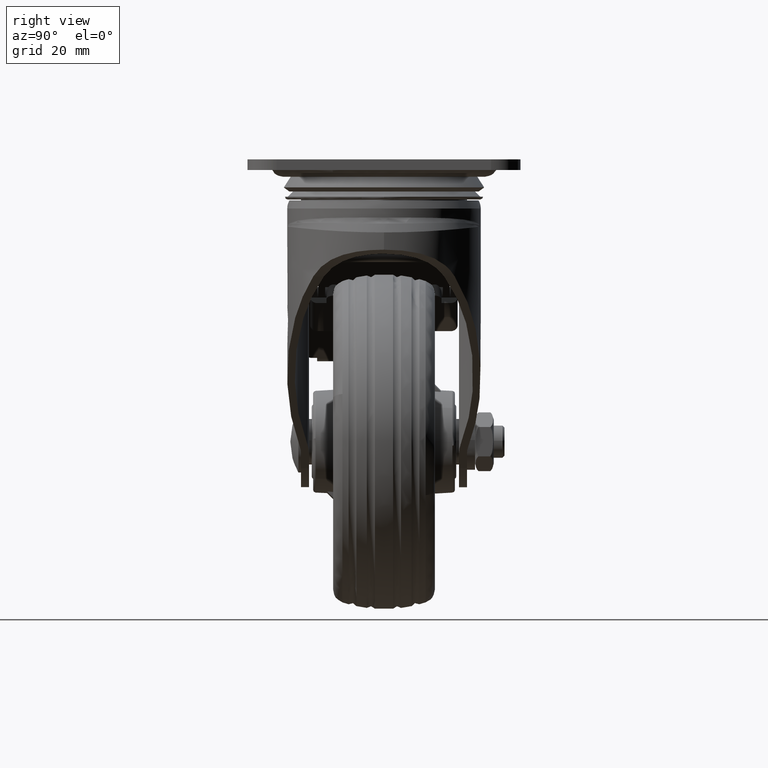
[diagram: clean part render]
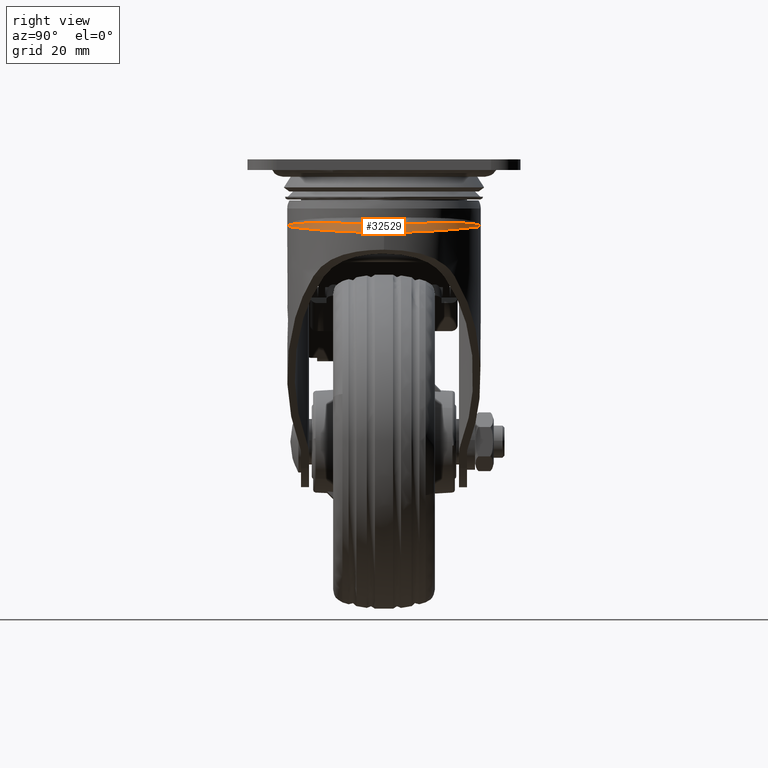
[diagram: same view with one face highlighted and labeled with its STEP entity id]
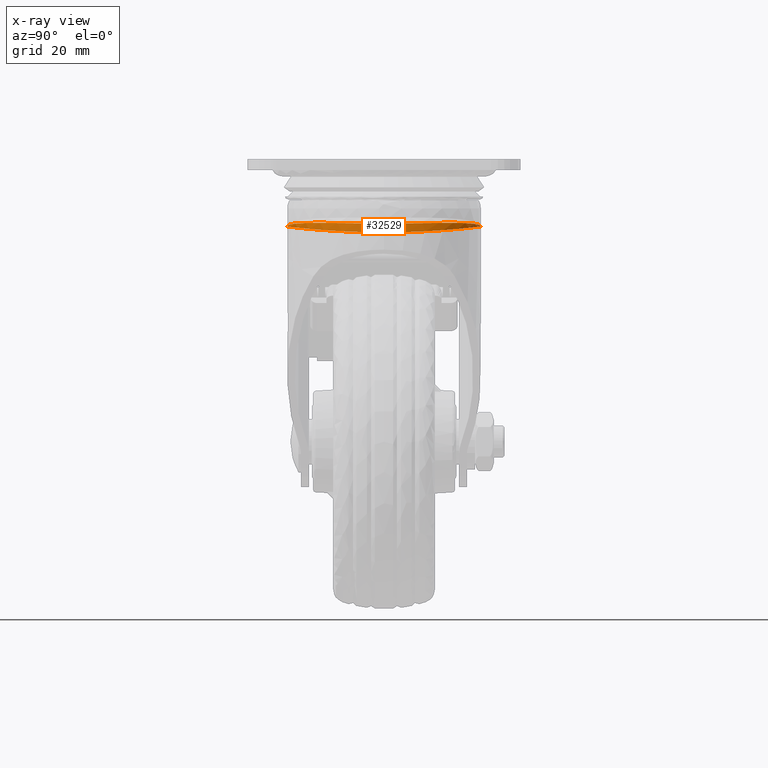
[diagram: x-ray of the same camera — body ghosted, the highlighted face saturated]
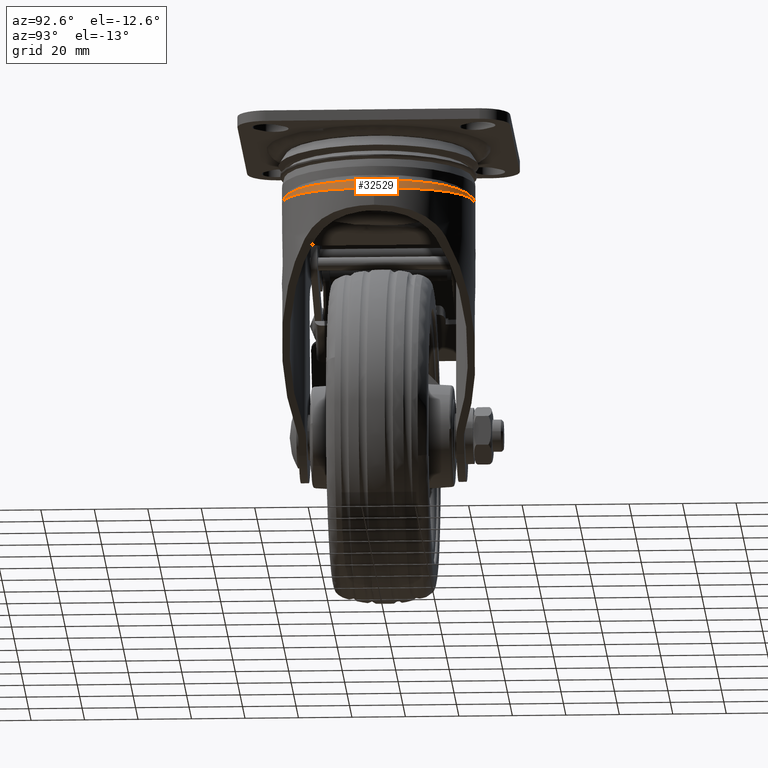
[diagram: same view with one face highlighted and labeled with its STEP entity id]
A machine part, right view. The second image highlights one B-rep face of the part: STEP entity #32529.
The next image is the same camera in x-ray: the body ghosted, the highlighted face saturated — about 0% of this face is hidden behind the body in this view.
A second angle (auxiliary view) of the same face is appended — the face is thin or edge-on in the first view.
In plain terms, the highlighted face is a freeform B-spline surface patch.
Its self-contained STEP definition (entity closure, byte-faithful):
#31751=CARTESIAN_POINT('',(-1.128453699253728,34.622355493005315,-21.753111623388239));
#31752=CARTESIAN_POINT('',(-0.978046487203735,34.624919291058028,-21.752776060126525));
#31753=CARTESIAN_POINT('',(-0.827639273302043,34.627483089142331,-21.752440496860707));
#31754=CARTESIAN_POINT('',(0.511933739159287,34.650317065213073,-21.749451866972411));
#31755=CARTESIAN_POINT('',(1.704764379236593,34.617364739335002,-21.753780203765995));
#31756=CARTESIAN_POINT('',(3.499315874997372,34.485948133518797,-21.770926785246637));
#31757=CARTESIAN_POINT('',(4.099564502909657,34.428263980602900,-21.778442345731079));
#31758=CARTESIAN_POINT('',(5.290497123290194,34.286420774636682,-21.796849414831172));
#31759=CARTESIAN_POINT('',(5.882290457070790,34.202234446219734,-21.807744496020803));
#31760=CARTESIAN_POINT('',(8.823035940493439,33.715995329283743,-21.870343386224317));
#31761=CARTESIAN_POINT('',(11.117755164232834,33.119761278666587,-21.946435131232146));
#31762=CARTESIAN_POINT('',(14.470507327708292,31.912861436811184,-22.093060894961233));
#31763=CARTESIAN_POINT('',(15.573121425459874,31.458136596562763,-22.147347810342051));
#31764=CARTESIAN_POINT('',(17.746872456037575,30.439037105100216,-22.265574002072441));
#31765=CARTESIAN_POINT('',(18.800746730732570,29.882713823524917,-22.328566675810968));
#31766=CARTESIAN_POINT('',(21.863108683215703,28.077898239670958,-22.525992012850597));
#31767=CARTESIAN_POINT('',(23.774353526170696,26.694449594390548,-22.668952235355203));
#31768=CARTESIAN_POINT('',(25.994295827601075,24.730337790930765,-22.851906392906457));
#31769=CARTESIAN_POINT('',(26.429754186188191,24.325662892018464,-22.888708469155794));
#31770=CARTESIAN_POINT('',(27.283132502027353,23.491883276162298,-22.962474492254174));
#31771=CARTESIAN_POINT('',(27.701733404331012,23.061922048066680,-22.999504158166715));
#31772=CARTESIAN_POINT('',(28.916102679981815,21.749990636713939,-23.109123520126200));
#31773=CARTESIAN_POINT('',(29.675248128174278,20.841747317545426,-23.180636648323457));
#31774=CARTESIAN_POINT('',(31.803413285602907,18.017031053359435,-23.387453501626890));
#31775=CARTESIAN_POINT('',(33.024856052940621,16.001774447757519,-23.515101315217048));
#31776=CARTESIAN_POINT('',(34.288066080229754,13.303684607366664,-23.651622077706058));
#31777=CARTESIAN_POINT('',(34.527979116570044,12.753399497003757,-23.677834767462329));
#31778=CARTESIAN_POINT('',(34.975180378211526,11.646922124732180,-23.727109123850536));
#31779=CARTESIAN_POINT('',(35.183017424855954,11.089780510684800,-23.750228565208598));
#31780=CARTESIAN_POINT('',(35.759786056564984,9.406708440039171,-23.814834340433283));
#31781=CARTESIAN_POINT('',(36.082100230129413,8.269163400847939,-23.851569629601329));
#31782=CARTESIAN_POINT('',(36.602199206194641,5.962610667601995,-23.911295423497030));
#31783=CARTESIAN_POINT('',(36.799996700047359,4.793606540554835,-23.934288486943252));
#31784=CARTESIAN_POINT('',(37.000080646595350,3.015334880504883,-23.957608804505913));
#31785=CARTESIAN_POINT('',(37.050678245672898,2.416673481455092,-23.963524380777411));
#31786=CARTESIAN_POINT('',(37.118092068212768,1.224417190575641,-23.971411137765909));
#31787=CARTESIAN_POINT('',(37.135122340313281,0.629838840420586,-23.973407239474188));
#31788=CARTESIAN_POINT('',(37.138502708160622,-2.335589046241436,-23.973803212762796));
#31789=CARTESIAN_POINT('',(36.882196358652884,-4.684290799012754,-23.943485107333615));
#31790=CARTESIAN_POINT('',(36.236481092414046,-7.592646156805032,-23.869290003705434));
#31791=CARTESIAN_POINT('',(36.090363813986123,-8.174729143768110,-23.852572914460840));
#31792=CARTESIAN_POINT('',(35.767703873385244,-9.325299438287168,-23.815908505854090));
#31793=CARTESIAN_POINT('',(35.591297585606810,-9.893810506013447,-23.795976236530240));
#31794=CARTESIAN_POINT('',(35.017993657108008,-11.579632071379143,-23.731716729118265));
#31795=CARTESIAN_POINT('',(34.577128917001872,-12.677285645073889,-23.682929421913883));
#31796=CARTESIAN_POINT('',(33.581086836890115,-14.821958124256899,-23.575154269471167));
#31797=CARTESIAN_POINT('',(33.025901903008823,-15.868973314971992,-23.516162777685590));
#31798=CARTESIAN_POINT('',(32.106849775851067,-17.401586892333988,-23.421259095327230));
#31799=CARTESIAN_POINT('',(31.785125566036822,-17.907512119626631,-23.388459032362473));
#31800=CARTESIAN_POINT('',(31.118080305422932,-18.898352456365707,-23.321495390997235));
#31801=CARTESIAN_POINT('',(30.772902696039964,-19.383264042552717,-23.287343264222951));
#31802=CARTESIAN_POINT('',(28.990276339260426,-21.756838094895812,-23.113935567300537));
#31803=CARTESIAN_POINT('',(27.384315539802515,-23.494173581322144,-22.966760770359748));
#31804=CARTESIAN_POINT('',(24.713130250057699,-25.866886157689049,-22.746178378164874));
#31805=CARTESIAN_POINT('',(23.775329498865911,-26.620383606331025,-22.672466976297262));
#31806=CARTESIAN_POINT('',(21.848873996344764,-28.020308984054530,-22.530117101909454));
#31807=CARTESIAN_POINT('',(20.856420066266246,-28.670591990609207,-22.461138447982066));
#31808=CARTESIAN_POINT('',(18.814858454207300,-29.874991069404629,-22.329431107366268));
#31809=CARTESIAN_POINT('',(17.765744882649269,-30.429096600045192,-22.266699896433728));
#31810=CARTESIAN_POINT('',(16.149759709997266,-31.188321650922113,-22.178662286162613));
#31811=CARTESIAN_POINT('',(15.604034015485313,-31.429386118594611,-22.150326335334121));
#31812=CARTESIAN_POINT('',(14.498346751909279,-31.887267560228633,-22.095907096962332));
#31813=CARTESIAN_POINT('',(13.937021154459593,-32.104542133025099,-22.069767604527947));
#31814=CARTESIAN_POINT('',(11.117816649340966,-33.121146815163442,-21.946290598773167));
#31815=CARTESIAN_POINT('',(8.815441963591542,-33.717324488984978,-21.870172579827287));
#31816=CARTESIAN_POINT('',(5.296153791144051,-34.299112731298273,-21.795272136647167));
#31817=CARTESIAN_POINT('',(4.112036669568160,-34.440596126525072,-21.776843668850333));
#31818=CARTESIAN_POINT('',(1.721773096215080,-34.616594774605488,-21.753881078810174));
#31819=CARTESIAN_POINT('',(0.511808813332585,-34.650422963051156,-21.749438010373048));
#31820=CARTESIAN_POINT('',(-0.831560097680955,-34.627402419445268,-21.752451054832324));
#31821=CARTESIAN_POINT('',(-0.982285155474688,-34.624819530458488,-21.752789116325744));
#31822=CARTESIAN_POINT('',(-1.133010211365617,-34.622236641504379,-21.753127177814918));
#31823=CARTESIAN_POINT('',(-1.128618705753361,34.629115653308929,-21.759121763278234));
#31824=CARTESIAN_POINT('',(-0.978189496381672,34.631679746506464,-21.758786208114884));
#31825=CARTESIAN_POINT('',(-0.827760285617528,34.634243839727716,-21.758450652948429));
#31826=CARTESIAN_POINT('',(0.512008617410494,34.657080444033859,-21.755462095240858));
#31827=CARTESIAN_POINT('',(1.705013454015366,34.624124351699834,-21.759790326293327));
#31828=CARTESIAN_POINT('',(3.499828486592964,34.492692529213421,-21.776936499121337));
#31829=CARTESIAN_POINT('',(4.100165508535049,34.435001678803836,-21.784451881402962));
#31830=CARTESIAN_POINT('',(5.291274289510840,34.293141879521286,-21.802858520170513));
#31831=CARTESIAN_POINT('',(5.883155551217183,34.208945652217942,-21.813753349152282));
#31832=CARTESIAN_POINT('',(8.824340562320753,33.722648811098111,-21.876350817339794));
#31833=CARTESIAN_POINT('',(11.119411372049253,33.126342800659685,-21.952440897491631));
#31834=CARTESIAN_POINT('',(14.472700323242165,31.919285296664029,-22.099064003194826));
#31835=CARTESIAN_POINT('',(15.575494852358149,31.464499512856790,-22.153350008297675));
#31836=CARTESIAN_POINT('',(17.749610660687878,30.445258105109751,-22.271574456573639));
#31837=CARTESIAN_POINT('',(18.803666393285020,29.888854951214626,-22.334566312231672));
#31838=CARTESIAN_POINT('',(21.866569640945134,28.083769994173043,-22.531989523209653));
#31839=CARTESIAN_POINT('',(23.778171852013006,26.700102242524171,-22.674948780770201));
#31840=CARTESIAN_POINT('',(25.998551410653473,24.735653064089682,-22.857902648533393));
#31841=CARTESIAN_POINT('',(26.434096719128082,24.330907495625720,-22.894704711408949));
#31842=CARTESIAN_POINT('',(27.287647680520877,23.496979711263680,-22.968470800332113));
#31843=CARTESIAN_POINT('',(27.706334426672829,23.066940819096793,-23.005500545930630));
#31844=CARTESIAN_POINT('',(28.920955910114937,21.754768432948200,-23.115120281093422));
#31845=CARTESIAN_POINT('',(29.680263357068906,20.846353074500577,-23.186633837797068));
#31846=CARTESIAN_POINT('',(31.808892819544418,18.021085125600298,-23.393452419660200));
#31847=CARTESIAN_POINT('',(33.030616581870994,16.005413302644826,-23.521101991833902));
#31848=CARTESIAN_POINT('',(34.294125845000870,13.306740658654510,-23.657625128475310));
#31849=CARTESIAN_POINT('',(34.534096244587381,12.756335426683645,-23.683838302031244));
#31850=CARTESIAN_POINT('',(34.981405224241733,11.649614184306246,-23.733113611154444));
#31851=CARTESIAN_POINT('',(35.189292752290299,11.092348624015932,-23.756233522273938));
#31852=CARTESIAN_POINT('',(35.766202357133537,9.408899017754569,-23.820840659257989));
#31853=CARTESIAN_POINT('',(36.088596553699190,8.271094701582962,-23.857576792078397));
#31854=CARTESIAN_POINT('',(36.608825588078425,5.964010227713191,-23.917304011783106));
#31855=CARTESIAN_POINT('',(36.806673115317579,4.794733642057236,-23.940297656981279));
#31856=CARTESIAN_POINT('',(37.006807806172127,3.016045077180647,-23.963618572469095));
#31857=CARTESIAN_POINT('',(37.057418275931944,2.417242924790799,-23.969534302646640));
#31858=CARTESIAN_POINT('',(37.124849257764197,1.224705908077446,-23.977421265466905));
#31859=CARTESIAN_POINT('',(37.141883872519010,0.629987358516652,-23.979417419729497));
#31860=CARTESIAN_POINT('',(37.145265101856431,-2.336139786143946,-23.979813403414362));
#31861=CARTESIAN_POINT('',(36.888892837484903,-4.685395271723590,-23.949494468326105));
#31862=CARTESIAN_POINT('',(36.243016003291913,-7.594421584172299,-23.875297588266424));
#31863=CARTESIAN_POINT('',(36.096862314235054,-8.176638104806104,-23.858580107273166));
#31864=CARTESIAN_POINT('',(35.774122474511024,-9.327470555850898,-23.821914867696862));
#31865=CARTESIAN_POINT('',(35.597672731638532,-9.896110257942056,-23.801982159460966));
#31866=CARTESIAN_POINT('',(35.024228600133164,-11.582310227227607,-23.737721293090807));
#31867=CARTESIAN_POINT('',(34.583257288603434,-12.680206079506533,-23.688933023751815));
#31868=CARTESIAN_POINT('',(33.586979008106191,-14.825342415641645,-23.581155984371449));
#31869=CARTESIAN_POINT('',(33.031664445363759,-15.872579187374576,-23.522163568126576));
#31870=CARTESIAN_POINT('',(32.112402522354813,-17.405509231565194,-23.427258632854912));
#31871=CARTESIAN_POINT('',(31.790605605110883,-17.911537572583189,-23.394458173477638));
#31872=CARTESIAN_POINT('',(31.123411334846697,-18.902577150750616,-23.327493805377934));
#31873=CARTESIAN_POINT('',(30.778157449979684,-19.387584875243242,-23.293341348146935));
#31874=CARTESIAN_POINT('',(28.995141927228826,-21.761622873491824,-23.119932189379540));
#31875=CARTESIAN_POINT('',(27.388845290492775,-23.499276143896619,-22.972756858692467));
#31876=CARTESIAN_POINT('',(24.717133302669609,-25.872396835589498,-22.752174794267649));
#31877=CARTESIAN_POINT('',(23.779152472972697,-26.626019131295301,-22.678463687266500));
#31878=CARTESIAN_POINT('',(21.852337374253413,-28.026168913104293,-22.536114710321179));
#31879=CARTESIAN_POINT('',(20.859703139899274,-28.676552171297153,-22.467136658001166));
#31880=CARTESIAN_POINT('',(18.817780567182993,-29.881131073399438,-22.335430733207112));
#31881=CARTESIAN_POINT('',(17.768486334747443,-30.435316173538659,-22.272700336261483));
#31882=CARTESIAN_POINT('',(16.152229869222410,-31.194647012014894,-22.184664021385043));
#31883=CARTESIAN_POINT('',(15.606413685269805,-31.435744477376844,-22.156328514636758));
#31884=CARTESIAN_POINT('',(14.500545257582814,-31.893687652946319,-22.101910173588916));
#31885=CARTESIAN_POINT('',(13.939128769342854,-32.110991020730957,-22.075771135451905));
#31886=CARTESIAN_POINT('',(11.119472771950457,-33.127728556471148,-21.952296365850405));
#31887=CARTESIAN_POINT('',(8.816745447647454,-33.723978129106555,-21.876180014797328));
#31888=CARTESIAN_POINT('',(5.296931275603305,-34.305835438828751,-21.801281273132808));
#31889=CARTESIAN_POINT('',(4.112639268156780,-34.447335270337092,-21.782853241746025));
#31890=CARTESIAN_POINT('',(1.722024660249714,-34.623354298521193,-21.759891198898799));
#31891=CARTESIAN_POINT('',(0.511883670116909,-34.657186354341533,-21.755448239281066));
#31892=CARTESIAN_POINT('',(-0.831681682995602,-34.634163160709562,-21.758461210627178));
#31893=CARTESIAN_POINT('',(-0.982428783796634,-34.631579974351567,-21.758799263922590));
#31894=CARTESIAN_POINT('',(-1.133175883166780,-34.628996788018156,-21.759137317214805));
#31895=CARTESIAN_POINT('',(-1.128951214248350,34.642738212016830,-21.771232938134631));
#31896=CARTESIAN_POINT('',(-0.978477677552790,34.645302899904905,-21.770897399234688));
#31897=CARTESIAN_POINT('',(-0.828004140390618,34.647867587800917,-21.770561860333689));
#31898=CARTESIAN_POINT('',(0.512159506335604,34.670709487767247,-21.767573447582446));
#31899=CARTESIAN_POINT('',(1.705515370490272,34.637745806375428,-21.771901466279228));
#31900=CARTESIAN_POINT('',(3.500861462575745,34.506283323551344,-21.789046818414409));
#31901=CARTESIAN_POINT('',(4.101376609579813,34.448578978226116,-21.796561842813073));
#31902=CARTESIAN_POINT('',(5.292840376433453,34.306685744637520,-21.814967617347595));
#31903=CARTESIAN_POINT('',(5.884898824131420,34.222469571767455,-21.825861939822381));
#31904=CARTESIAN_POINT('',(8.826969540599482,33.736056419955823,-21.888456552184085));
#31905=CARTESIAN_POINT('',(11.122748843777696,33.139605413819844,-21.964543288809892));
#31906=CARTESIAN_POINT('',(14.477119497876267,31.932230219750352,-22.111161056390717));
#31907=CARTESIAN_POINT('',(15.580277622395483,31.477321633236077,-22.165445233375472));
#31908=CARTESIAN_POINT('',(17.755128511711057,30.457794257681151,-22.283666180253061));
#31909=CARTESIAN_POINT('',(18.809549909126613,29.901230156019516,-22.346656392948514));
#31910=CARTESIAN_POINT('',(21.873543948313106,28.095602389679801,-22.544075334120013));
#31911=CARTESIAN_POINT('',(23.785866309626012,26.711493114665938,-22.687032653762095));
#31912=CARTESIAN_POINT('',(26.007127003759081,24.746364080487322,-22.869985939537319));
#31913=CARTESIAN_POINT('',(26.442847528444283,24.341476103104657,-22.906787975553925));
#31914=CARTESIAN_POINT('',(27.296746394360273,23.507249738164067,-22.980554196674554));
#31915=CARTESIAN_POINT('',(27.715606127411817,23.077054341616741,-23.017584102308245));
#31916=CARTESIAN_POINT('',(28.930735842616013,21.764396355670460,-23.127204586983705));
#31917=CARTESIAN_POINT('',(29.690369737122133,20.855634311947494,-23.198719004266021));
#31918=CARTESIAN_POINT('',(31.819934827734325,18.029254634059207,-23.405541057628575));
#31919=CARTESIAN_POINT('',(33.042224821769473,16.012746084234550,-23.533194161591886));
#31920=CARTESIAN_POINT('',(34.306337068972482,13.312899004424395,-23.669722066264995));
#31921=CARTESIAN_POINT('',(34.546423059689033,12.762251709980776,-23.695936211438642));
#31922=CARTESIAN_POINT('',(34.993949098521576,11.655039034445030,-23.745213433943576));
#31923=CARTESIAN_POINT('',(35.201938349812671,11.097523704984539,-23.768334288486042));
#31924=CARTESIAN_POINT('',(35.779132023844745,9.413313312169622,-23.832944160291770));
#31925=CARTESIAN_POINT('',(36.101687470766151,8.274986517851348,-23.869681987416996));
#31926=CARTESIAN_POINT('',(36.622178578423025,5.966830516821069,-23.929412070566290));
#31927=CARTESIAN_POINT('',(36.820126924792604,4.797004892160553,-23.952406884092287));
#31928=CARTESIAN_POINT('',(37.020363867179761,3.017476211577592,-23.975729000387560));
#31929=CARTESIAN_POINT('',(37.071000271781188,2.418390423648327,-23.981645039652989));
#31930=CARTESIAN_POINT('',(37.138465830131565,1.225287709539006,-23.989532415843044));
#31931=CARTESIAN_POINT('',(37.155509195467502,0.630286640833297,-23.991528675649871));
#31932=CARTESIAN_POINT('',(37.158892160733949,-2.337249595098480,-23.991924680213387));
#31933=CARTESIAN_POINT('',(36.902387076085802,-4.687620921749828,-23.961604078929792));
#31934=CARTESIAN_POINT('',(36.256184675548994,-7.597999294955613,-23.887403631274307));
#31935=CARTESIAN_POINT('',(36.109957617362660,-8.180484903681805,-23.870685363533866));
#31936=CARTESIAN_POINT('',(35.787056776825288,-9.331845635463852,-23.834018455123584));
#31937=CARTESIAN_POINT('',(35.610519469561254,-9.900744553402442,-23.814084865421151));
#31938=CARTESIAN_POINT('',(35.036792820627575,-11.587707059317763,-23.749821269853946));
#31939=CARTESIAN_POINT('',(34.595606760533180,-12.686091137625308,-23.701031068256167));
#31940=CARTESIAN_POINT('',(33.598852517944628,-14.832162213569983,-23.593250239324782));
#31941=CARTESIAN_POINT('',(33.043276741836721,-15.879845504358197,-23.534255966478014));
#31942=CARTESIAN_POINT('',(32.123592059931418,-17.413413277281368,-23.439348514963346));
#31943=CARTESIAN_POINT('',(31.801648629821553,-17.919649408259922,-23.406547259464475));
#31944=CARTESIAN_POINT('',(31.134154089232215,-18.911090488517733,-23.339581431851570));
#31945=CARTESIAN_POINT('',(30.788746500792719,-19.396291946485697,-23.305428310958273));
#31946=CARTESIAN_POINT('',(29.004946763252089,-21.771264867398092,-23.132016216337853));
#31947=CARTESIAN_POINT('',(27.397973370470730,-23.509558519783759,-22.984839813715467));
#31948=CARTESIAN_POINT('',(24.725200011002997,-25.883501618776673,-22.764258407558852));
#31949=CARTESIAN_POINT('',(23.786856296765713,-26.637375496808954,-22.690547892744775));
#31950=CARTESIAN_POINT('',(21.859316558230063,-28.037977478039217,-22.548200718152113));
#31951=CARTESIAN_POINT('',(20.866318983657070,-28.688562753028538,-22.479223874051858));
#31952=CARTESIAN_POINT('',(18.823669020994760,-29.893504013880573,-22.347520792676235));
#31953=CARTESIAN_POINT('',(17.774010729861057,-30.447849451591917,-22.284792030472044));
#31954=CARTESIAN_POINT('',(16.157207569029467,-31.207393457009420,-22.196758317151286));
#31955=CARTESIAN_POINT('',(15.611209035601380,-31.448557413899973,-22.168423702253403));
#31956=CARTESIAN_POINT('',(14.504975535952495,-31.906624984990025,-22.114007163308042));
#31957=CARTESIAN_POINT('',(13.943375889715544,-32.123986375135708,-22.087869037539114));
#31958=CARTESIAN_POINT('',(11.122810071974454,-33.140991611572382,-21.964398758810969));
#31959=CARTESIAN_POINT('',(8.819372133166938,-33.737386056944203,-21.888285757382747));
#31960=CARTESIAN_POINT('',(5.298498003788892,-34.319382533238333,-21.813390432860800));
#31961=CARTESIAN_POINT('',(4.113853579194960,-34.460915482560218,-21.794963277912363));
#31962=CARTESIAN_POINT('',(1.722531592883653,-34.636975574979651,-21.772002333987096));
#31963=CARTESIAN_POINT('',(0.512034515783470,-34.670815423191158,-21.767559592901232));
#31964=CARTESIAN_POINT('',(-0.831926692432883,-34.647786890002607,-21.770572417424987));
#31965=CARTESIAN_POINT('',(-0.982718212619563,-34.645203104469260,-21.770910454257606));
#31966=CARTESIAN_POINT('',(-1.133509732326751,-34.642619318944107,-21.771248491089136));
#31967=CARTESIAN_POINT('',(-1.165404450293398,36.136192832279534,-23.098993047960544));
#31968=CARTESIAN_POINT('',(-1.010071254366157,36.138822208139125,-23.098658839931247));
#31969=CARTESIAN_POINT('',(-0.854738162782648,36.141451582232456,-23.098324632126445));
#31970=CARTESIAN_POINT('',(0.528701547397415,36.164869519109573,-23.095348084477159));
#31971=CARTESIAN_POINT('',(1.760541010821297,36.131080461120085,-23.099658705146187));
#31972=CARTESIAN_POINT('',(3.614109656120289,35.996282058528479,-23.116736722198226));
#31973=CARTESIAN_POINT('',(4.234154164573845,35.937109294098065,-23.124222382830318));
#31974=CARTESIAN_POINT('',(5.464539449105163,35.791577194318371,-23.142557246106730));
#31975=CARTESIAN_POINT('',(6.076025822517123,35.705189878379720,-23.153410007915429));
#31976=CARTESIAN_POINT('',(9.115219612850922,35.206112012739929,-23.215770273927614));
#31977=CARTESIAN_POINT('',(11.488705957991321,34.593864216271449,-23.291582605476364));
#31978=CARTESIAN_POINT('',(14.961740164337568,33.351811425022781,-23.437762168003861));
#31979=CARTESIAN_POINT('',(16.104791233996298,32.883489317659979,-23.491896252171458));
#31980=CARTESIAN_POINT('',(18.360300518239018,31.832700643137727,-23.609829690413875));
#31981=CARTESIAN_POINT('',(19.454848346078773,31.258530881054998,-23.672684978449119));
#31982=CARTESIAN_POINT('',(22.638547238077479,29.393483456696647,-23.869753228435378));
#31983=CARTESIAN_POINT('',(24.629895988099491,27.960994331632801,-24.012551351639548));
#31984=CARTESIAN_POINT('',(26.947822630324310,25.921303954296963,-24.195456826732904));
#31985=CARTESIAN_POINT('',(27.402763950035169,25.500795145014166,-24.232256656231360));
#31986=CARTESIAN_POINT('',(28.294823317506616,24.633813011862397,-24.306033737572672));
#31987=CARTESIAN_POINT('',(28.732655342923863,24.186446289710709,-24.343076790263893));
#31988=CARTESIAN_POINT('',(30.003518285010827,22.820504508977464,-24.452758846811275));
#31989=CARTESIAN_POINT('',(30.798941110449569,21.873695584977622,-24.524343957894377));
#31990=CARTESIAN_POINT('',(33.031048121877951,18.925305436688035,-24.731451154758748));
#31991=CARTESIAN_POINT('',(34.315350306044536,16.816963708452430,-24.859394310254007));
#31992=CARTESIAN_POINT('',(35.645461718615095,13.988244296643725,-24.996313701717103));
#31993=CARTESIAN_POINT('',(35.898196538202050,13.411038504176146,-25.022607614192623));
#31994=CARTESIAN_POINT('',(36.369470862932054,12.249911022804090,-25.072041909793775));
#31995=CARTESIAN_POINT('',(36.588587583018139,11.664995668582460,-25.095240206495706));
#31996=CARTESIAN_POINT('',(37.196850219891928,9.897333948950934,-25.160074552337985));
#31997=CARTESIAN_POINT('',(37.537035991423821,8.701703202016955,-25.196951431770373));
#31998=CARTESIAN_POINT('',(38.086174920419452,6.276041624651458,-25.256916495401189));
#31999=CARTESIAN_POINT('',(38.295141077449017,5.046014368089128,-25.280007174526364));
#32000=CARTESIAN_POINT('',(38.506551330992387,3.174375328406097,-25.303427816709132));
#32001=CARTESIAN_POINT('',(38.560021479798905,2.544193004800693,-25.309369215639585));
#32002=CARTESIAN_POINT('',(38.631264909766657,1.289071212678814,-25.317290507018701));
#32003=CARTESIAN_POINT('',(38.649264334877813,0.663097202484786,-25.319295426143540));
#32004=CARTESIAN_POINT('',(38.652836963382640,-2.458918792719255,-25.319693143678052));
#32005=CARTESIAN_POINT('',(38.381821910765460,-4.931629070413154,-25.289235840259451));
#32006=CARTESIAN_POINT('',(37.700033203269079,-7.990269096060622,-25.214742639507751));
#32007=CARTESIAN_POINT('',(37.545785227556927,-8.602265139142370,-25.197959806759858));
#32008=CARTESIAN_POINT('',(37.205280712126545,-9.811565567408382,-25.161155936105306));
#32009=CARTESIAN_POINT('',(37.019167919131050,-10.408896362397819,-25.141149999696669));
#32010=CARTESIAN_POINT('',(36.414541280677980,-12.179504784028847,-25.076662386616274));
#32011=CARTESIAN_POINT('',(35.949861014530796,-13.331451930192239,-25.027713563529442));
#32012=CARTESIAN_POINT('',(34.901014867440360,-15.580086307986901,-24.919621603793217));
#32013=CARTESIAN_POINT('',(34.316841071607087,-16.676769880229280,-24.860474879129445));
#32014=CARTESIAN_POINT('',(33.350854991966173,-18.280325091477081,-24.765360788727698));
#32015=CARTESIAN_POINT('',(33.012862139802984,-18.809366240362447,-24.732494149399852));
#32016=CARTESIAN_POINT('',(32.312469288857777,-19.844872918102094,-24.665408448848229));
#32017=CARTESIAN_POINT('',(31.950218795672463,-20.351337133840325,-24.631200817150965));
#32018=CARTESIAN_POINT('',(30.080467164642240,-22.828922652970505,-24.457547565742008));
#32019=CARTESIAN_POINT('',(28.399280773787229,-24.637486750511680,-24.310283099454676));
#32020=CARTESIAN_POINT('',(25.610067837346602,-27.101627396323874,-24.089755770976318));
#32021=CARTESIAN_POINT('',(24.631907543292094,-27.883082965097149,-24.016093904321092));
#32022=CARTESIAN_POINT('',(22.624851622100341,-29.333239294021016,-23.873894783209284));
#32023=CARTESIAN_POINT('',(21.591981645857246,-30.005950380798339,-23.805017181611749));
#32024=CARTESIAN_POINT('',(19.469509334971562,-31.250556989175625,-23.673547633190079));
#32025=CARTESIAN_POINT('',(18.379900832492947,-31.822441415023775,-23.610953120609349));
#32026=CARTESIAN_POINT('',(16.703109148139827,-32.605289015253597,-23.523133030961308));
#32027=CARTESIAN_POINT('',(16.137102703247713,-32.853719021614403,-23.494871643858051));
#32028=CARTESIAN_POINT('',(14.990814513417977,-33.325375602167192,-23.440603062062014));
#32029=CARTESIAN_POINT('',(14.409120326169687,-33.549072900275242,-23.414539839269359));
#32030=CARTESIAN_POINT('',(11.488748346170370,-34.595298823813067,-23.291438210398713));
#32031=CARTESIAN_POINT('',(9.107370773217172,-35.207476387320170,-23.215600114404825));
#32032=CARTESIAN_POINT('',(5.470267158651321,-35.804626099404381,-23.140985194800418));
#32033=CARTESIAN_POINT('',(4.246982851051111,-35.949762827329579,-23.122629951680292));
#32034=CARTESIAN_POINT('',(1.778107165754012,-36.130290843563046,-23.099759171048451));
#32035=CARTESIAN_POINT('',(0.528571813350161,-36.164978114511406,-23.095334286852150));
#32036=CARTESIAN_POINT('',(-0.858787302169421,-36.141368850589672,-23.098335147073115));
#32037=CARTESIAN_POINT('',(-1.014448571498505,-36.138719898383371,-23.098671842674030));
#32038=CARTESIAN_POINT('',(-1.170109948051059,-36.136070944352419,-23.099008538506851));
#32039=CARTESIAN_POINT('',(-1.157293937273833,36.136383715819953,-25.097500330828918));
#32040=CARTESIAN_POINT('',(-1.003041795152544,36.138976738548706,-25.097164796975459));
#32041=CARTESIAN_POINT('',(-0.848789652557917,36.141569761285403,-25.096829263120984));
#32042=CARTESIAN_POINT('',(0.525027417210334,36.164664020062304,-25.093840895315964));
#32043=CARTESIAN_POINT('',(1.748256581779063,36.131346110191615,-25.098168847583832));
#32044=CARTESIAN_POINT('',(3.589138256592955,35.998396352519237,-25.115313939906301));
#32045=CARTESIAN_POINT('',(4.204984072236585,35.940032193230223,-25.122828850994257));
#32046=CARTESIAN_POINT('',(5.427181772615906,35.796469100356887,-25.141234351826583));
#32047=CARTESIAN_POINT('',(6.034671224790374,35.711242572022627,-25.152128513972027));
#32048=CARTESIAN_POINT('',(9.054483560861948,35.218782837886550,-25.214722221962564));
#32049=CARTESIAN_POINT('',(11.414421027691221,34.614472075616575,-25.290807900049291));
#32050=CARTESIAN_POINT('',(14.872020462179433,33.386561970441484,-25.437423977652976));
#32051=CARTESIAN_POINT('',(16.010736246152664,32.923319773668432,-25.491707575853823));
#32052=CARTESIAN_POINT('',(18.259457322064769,31.883035253484064,-25.609927414440779));
#32053=CARTESIAN_POINT('',(19.351608009131631,31.314203246856497,-25.672917107030191));
#32054=CARTESIAN_POINT('',(22.531135566022897,29.464730072275323,-25.870334696515851));
#32055=CARTESIAN_POINT('',(24.523769221476950,28.042050377057596,-26.013291402862684));
#32056=CARTESIAN_POINT('',(26.847864148137820,26.011554434074519,-26.196244504447559));
#32057=CARTESIAN_POINT('',(27.304263872802867,25.592730643177969,-26.233046531930835));
#32058=CARTESIAN_POINT('',(28.199662056793855,24.728749852808349,-26.306812794951345));
#32059=CARTESIAN_POINT('',(28.639379278229406,24.282700247195542,-26.343842751237393));
#32060=CARTESIAN_POINT('',(29.916399455684996,22.920031912199171,-26.453463473063980));
#32061=CARTESIAN_POINT('',(30.716612346136035,21.974517857610628,-26.524978162805883));
#32062=CARTESIAN_POINT('',(32.964414817185407,19.026963692343905,-26.731801314924617));
#32063=CARTESIAN_POINT('',(34.260977363935524,16.915063812705409,-26.859455536822864));
#32064=CARTESIAN_POINT('',(35.605807240128399,14.076128912149374,-26.995984951027136));
#32065=CARTESIAN_POINT('',(35.861460875792240,13.496587123785792,-27.022199403810095));
#32066=CARTESIAN_POINT('',(36.338362821244225,12.330285176920526,-27.071477232029967));
#32067=CARTESIAN_POINT('',(36.560194008352703,11.742529254346392,-27.094598385270050));
#32068=CARTESIAN_POINT('',(37.176198809851080,9.965647765184338,-27.159209122923098));
#32069=CARTESIAN_POINT('',(37.521008193901771,8.762936281718863,-27.195947486496877));
#32070=CARTESIAN_POINT('',(38.077832401658597,6.321658628775651,-27.255678476260606));
#32071=CARTESIAN_POINT('',(38.289859602815341,5.083096033582912,-27.278673659666890));
#32072=CARTESIAN_POINT('',(38.504398490281950,3.197956776266405,-27.301996156291757));
#32073=CARTESIAN_POINT('',(38.558669143246796,2.563145089286310,-27.307912293406311));
#32074=CARTESIAN_POINT('',(38.630981779689527,1.298717166143366,-27.315799800460791));
#32075=CARTESIAN_POINT('',(38.649253226532153,0.668059461164432,-27.317796093707457));
#32076=CARTESIAN_POINT('',(38.652879727532209,-2.477319999713134,-27.318192104849956));
#32077=CARTESIAN_POINT('',(38.377634577659357,-4.968514943502884,-27.287870975848062));
#32078=CARTESIAN_POINT('',(37.686282672103076,-8.046938958763599,-27.213669398768690));
#32079=CARTESIAN_POINT('',(37.529906459454118,-8.662738530277867,-27.196950881931528));
#32080=CARTESIAN_POINT('',(37.184823254963682,-9.879184602252996,-27.160283445089110));
#32081=CARTESIAN_POINT('',(36.996261766003798,-10.479859020674711,-27.140349576365516));
#32082=CARTESIAN_POINT('',(36.383919936711031,-12.259757129260482,-27.076085116629383));
#32083=CARTESIAN_POINT('',(35.913603675309332,-13.416905095432364,-27.027294303384405));
#32084=CARTESIAN_POINT('',(34.853096282980566,-15.673774173942860,-26.919512274723878));
#32085=CARTESIAN_POINT('',(34.262897548608848,-16.773492065833587,-26.860517414136375));
#32086=CARTESIAN_POINT('',(33.288036438193210,-18.379931199104366,-26.765609166177057));
#32087=CARTESIAN_POINT('',(32.947104426589270,-18.909657322699850,-26.732807658668190));
#32088=CARTESIAN_POINT('',(32.241010424264523,-19.945978815928811,-26.665841369026491));
#32089=CARTESIAN_POINT('',(31.875998010614008,-20.452574970808094,-26.631688038099401));
#32090=CARTESIAN_POINT('',(29.993038738972228,-22.929534992124971,-26.458275014070630));
#32091=CARTESIAN_POINT('',(28.303265417314705,-24.733455491926271,-26.311098272251051));
#32092=CARTESIAN_POINT('',(25.506510896959306,-27.186590181984304,-26.090517074488094));
#32093=CARTESIAN_POINT('',(24.526723197510606,-27.963691127508309,-26.016806747122377));
#32094=CARTESIAN_POINT('',(22.518438939688480,-29.404435945812907,-25.874460142961134));
#32095=CARTESIAN_POINT('',(21.485950103018098,-30.072077482319447,-25.805483681306967));
#32096=CARTESIAN_POINT('',(19.366241009109061,-31.306300926537197,-25.673781500016140));
#32097=CARTESIAN_POINT('',(18.279014301320867,-31.872871500845569,-25.611053255242080));
#32098=CARTESIAN_POINT('',(16.607245933425499,-32.647903888810106,-25.523020365530481));
#32099=CARTESIAN_POINT('',(16.043155129206248,-32.893754527610866,-25.494686032947609));
#32100=CARTESIAN_POINT('',(14.901165614286120,-33.360357836778086,-25.440270064507473));
#32101=CARTESIAN_POINT('',(14.321861175000985,-33.581575718971024,-25.414132227596454));
#32102=CARTESIAN_POINT('',(11.414445183397840,-34.615896613239826,-25.290663370455238));
#32103=CARTESIAN_POINT('',(9.046684251723686,-35.220129203212196,-25.214551429663430));
#32104=CARTESIAN_POINT('',(5.432775849537112,-35.809360155109282,-25.139657187182539));
#32105=CARTESIAN_POINT('',(4.217681265602124,-35.952514979905828,-25.121230309705197));
#32106=CARTESIAN_POINT('',(1.765700934600495,-36.130567432947828,-25.098269713806399));
#32107=CARTESIAN_POINT('',(0.524897996678311,-36.164771104516483,-25.093827044845874));
#32108=CARTESIAN_POINT('',(-0.852810540855010,-36.141488174655166,-25.096839819545067));
#32109=CARTESIAN_POINT('',(-1.007388488129776,-36.138875845990249,-25.097177850787464));
#32110=CARTESIAN_POINT('',(-1.161966434918144,-36.136263517333568,-25.097515882028805));
#32111=CARTESIAN_POINT('',(-1.157220341339936,36.136385447924035,-25.115635066514717));
#32112=CARTESIAN_POINT('',(-1.002978008830950,36.138978140779848,-25.115299526804815));
#32113=CARTESIAN_POINT('',(-0.848735674904181,36.141570833659479,-25.114963987091830));
#32114=CARTESIAN_POINT('',(0.524994077513351,36.164662155328166,-25.111975567018579));
#32115=CARTESIAN_POINT('',(1.748145111225046,36.131348520726839,-25.116303596217364));
#32116=CARTESIAN_POINT('',(3.588911666633237,35.998415537578929,-25.133448987994392));
#32117=CARTESIAN_POINT('',(4.204719385393613,35.940058715358909,-25.140964029665689));
#32118=CARTESIAN_POINT('',(5.426842798443141,35.796513488283509,-25.159369845845820));
#32119=CARTESIAN_POINT('',(6.034295987506780,35.711297492066471,-25.170264192810855));
#32120=CARTESIAN_POINT('',(9.053932495678080,35.218897801740141,-25.232858942850957));
#32121=CARTESIAN_POINT('',(11.413747078794970,34.614659040105920,-25.308945841017785));
#32122=CARTESIAN_POINT('',(14.871206571816266,33.386877209272541,-25.455563867078816));
#32123=CARTESIAN_POINT('',(16.009883060743789,32.923681081076701,-25.509848132574771));
#32124=CARTESIAN_POINT('',(18.258542626451717,31.883491812270524,-25.628069249321406));
#32125=CARTESIAN_POINT('',(19.350671602279945,31.314708204379187,-25.691059541717763));
#32126=CARTESIAN_POINT('',(22.530161410903808,29.465376233478821,-25.888478690003968));
#32127=CARTESIAN_POINT('',(24.522806758378838,28.042785473914737,-26.031436104049135));
#32128=CARTESIAN_POINT('',(26.846957636141280,26.012372905312027,-26.214389418142993));
#32129=CARTESIAN_POINT('',(27.303370587411845,25.593564395188412,-26.251191455433563));
#32130=CARTESIAN_POINT('',(28.198799048359099,24.729610826001544,-26.324957670183601));
#32131=CARTESIAN_POINT('',(28.638533363645493,24.283573168096101,-26.361987568033737));
#32132=CARTESIAN_POINT('',(29.915609368365487,22.920934533823427,-26.471608016184337));
#32133=CARTESIAN_POINT('',(30.715865686931753,21.975432238853724,-26.543122391690311));
#32134=CARTESIAN_POINT('',(32.963810460260078,19.027885721817107,-26.749944276285611));
#32135=CARTESIAN_POINT('',(34.260484170996598,16.915953635415903,-26.877597208692737));
#32136=CARTESIAN_POINT('',(35.605447516235273,14.076926153652440,-27.014124882609888));
#32137=CARTESIAN_POINT('',(35.861127623086325,13.497363190068631,-27.040338980748050));
#32138=CARTESIAN_POINT('',(36.338080609069387,12.331014331300079,-27.089616110601654));
#32139=CARTESIAN_POINT('',(36.559936416775642,11.743232652874729,-27.112736919515598));
#32140=CARTESIAN_POINT('',(37.176011445928282,9.966267555531170,-27.177346659034818));
#32141=CARTESIAN_POINT('',(37.520862773481475,8.763491850266115,-27.214084404311485));
#32142=CARTESIAN_POINT('',(38.077756705371890,6.322072537083269,-27.273814349159554));
#32143=CARTESIAN_POINT('',(38.289811679911807,5.083432504209418,-27.296809106267670));
#32144=CARTESIAN_POINT('',(38.504378955406047,3.198170754316484,-27.320131164743497));
#32145=CARTESIAN_POINT('',(38.558656872066564,2.563317061598929,-27.326047189080462));
#32146=CARTESIAN_POINT('',(38.630979210528722,1.298804694835603,-27.333934545306967));
#32147=CARTESIAN_POINT('',(38.649253125733324,0.668104489472596,-27.335930800044281));
#32148=CARTESIAN_POINT('',(38.652880115580935,-2.477486975203930,-27.336326803568618));
#32149=CARTESIAN_POINT('',(38.377596582445385,-4.968849640218804,-27.306006282407967));
#32150=CARTESIAN_POINT('',(37.686157911153614,-8.047453134237463,-27.231806007269697));
#32151=CARTESIAN_POINT('',(37.529762390997305,-8.663287206855436,-27.215087777533565));
#32152=CARTESIAN_POINT('',(37.184637650382641,-9.879798090162831,-27.178420949710091));
#32153=CARTESIAN_POINT('',(36.996053948919524,-10.480502832520868,-27.158487402675249));
#32154=CARTESIAN_POINT('',(36.383642138969869,-12.260485180917906,-27.094223938968771));
#32155=CARTESIAN_POINT('',(35.913274760856439,-13.417680297962349,-27.045433830973394));
#32156=CARTESIAN_POINT('',(34.852661615835594,-15.674624012010327,-26.937653185562191));
#32157=CARTESIAN_POINT('',(34.262408248414367,-16.774369394224429,-26.878659002727151));
#32158=CARTESIAN_POINT('',(33.287466665919965,-18.380834639170374,-26.783751673390952));
#32159=CARTESIAN_POINT('',(32.946508005631586,-18.910566960527177,-26.750950456533463));
#32160=CARTESIAN_POINT('',(32.240362313647950,-19.946895816305911,-26.683984699748123));
#32161=CARTESIAN_POINT('',(31.875324859483715,-20.453493155172943,-26.649831611128434));
#32162=CARTESIAN_POINT('',(29.992245848497070,-22.930447447825596,-26.476419658961767));
#32163=CARTESIAN_POINT('',(28.302394671151188,-24.734325815346143,-26.329243308624655));
#32164=CARTESIAN_POINT('',(25.505571744669616,-27.187360704890743,-26.108661870503290));
#32165=CARTESIAN_POINT('',(24.525769274632523,-27.964422167566717,-26.034951326898433));
#32166=CARTESIAN_POINT('',(22.517473840813999,-29.405081656521006,-25.892604064656105));
#32167=CARTESIAN_POINT('',(21.484988436709237,-30.072677230318327,-25.823627161852880));
#32168=CARTESIAN_POINT('',(19.365304348806795,-31.306806533002536,-25.691923942460765));
#32169=CARTESIAN_POINT('',(18.278099213199081,-31.873328925359818,-25.629195100881162));
#32170=CARTESIAN_POINT('',(16.606376362136903,-32.648290446580205,-25.541161261511849));
#32171=CARTESIAN_POINT('',(16.042302918824777,-32.894117694772874,-25.512826603375643));
#32172=CARTESIAN_POINT('',(14.900352367282691,-33.360675176954537,-25.458409977136942));
#32173=CARTESIAN_POINT('',(14.321069591511923,-33.581870572797612,-25.432271807207865));
#32174=CARTESIAN_POINT('',(11.413771069064820,-34.616083486376340,-25.308801310820517));
#32175=CARTESIAN_POINT('',(9.046133635847141,-35.220244003684222,-25.232688147727419));
#32176=CARTESIAN_POINT('',(5.432435662373589,-35.809403110797419,-25.157792658361547));
#32177=CARTESIAN_POINT('',(4.217415385189351,-35.952539952734121,-25.139365461097473));
#32178=CARTESIAN_POINT('',(1.765588358809268,-36.130569942756701,-25.116404464227131));
#32179=CARTESIAN_POINT('',(0.524864659824133,-36.164769226071641,-25.111961717204032));
#32180=CARTESIAN_POINT('',(-0.852756306847654,-36.141489257419195,-25.114974543588293));
#32181=CARTESIAN_POINT('',(-1.007324423921832,-36.138877261081163,-25.115312580619193));
#32182=CARTESIAN_POINT('',(-1.161892539539099,-36.136265264767722,-25.115650617646907));
#32183=CARTESIAN_POINT('',(-1.157183626459876,36.136386312020591,-25.124681960960775));
#32184=CARTESIAN_POINT('',(-1.002946187682232,36.138978840312319,-25.124346418370763));
#32185=CARTESIAN_POINT('',(-0.848708747015693,36.141571368635823,-25.124010875776655));
#32186=CARTESIAN_POINT('',(0.524977445303222,36.164661225066283,-25.121022429998074));
#32187=CARTESIAN_POINT('',(1.748089501794407,36.131349723273068,-25.125350497035249));
#32188=CARTESIAN_POINT('',(3.588798627491517,35.998425108447286,-25.142496036122459));
#32189=CARTESIAN_POINT('',(4.204587340837920,35.940071946476344,-25.150011142031360));
#32190=CARTESIAN_POINT('',(5.426673694143508,35.796535632121731,-25.168417113339988));
#32191=CARTESIAN_POINT('',(6.034108792628420,35.711324890066052,-25.179311551222973));
#32192=CARTESIAN_POINT('',(9.053657585635595,35.218955153789963,-25.241906813875907));
#32193=CARTESIAN_POINT('',(11.413410866035242,34.614752311045692,-25.317994312233427));
#32194=CARTESIAN_POINT('',(14.870800547089928,33.387034472174172,-25.464613296797332));
#32195=CARTESIAN_POINT('',(16.009457433152473,32.923861326074245,-25.518897890554687));
#32196=CARTESIAN_POINT('',(18.258086313785189,31.883719574986682,-25.637119636064337));
#32197=CARTESIAN_POINT('',(19.350204458779022,31.314960111575836,-25.700110223522913));
#32198=CARTESIAN_POINT('',(22.529675436577552,29.465698582301265,-25.897530138626493));
#32199=CARTESIAN_POINT('',(24.522326617082236,28.043152189645220,-26.040487900809865));
#32200=CARTESIAN_POINT('',(26.846505407089250,26.012781213721933,-26.223441319442987));
#32201=CARTESIAN_POINT('',(27.302924956682126,25.593980326670795,-26.260243361558079));
#32202=CARTESIAN_POINT('',(28.198368521792045,24.730040337253421,-26.334009552562463));
#32203=CARTESIAN_POINT('',(28.638111364620372,24.284008639686327,-26.371039421666289));
#32204=CARTESIAN_POINT('',(29.915215219647759,22.921384822224468,-26.480659735187860));
#32205=CARTESIAN_POINT('',(30.715493202990363,21.975888393853811,-26.552173956112082));
#32206=CARTESIAN_POINT('',(32.963508965994670,19.028345692716844,-26.758995217175880));
#32207=CARTESIAN_POINT('',(34.260238132631571,16.916397539834641,-26.886647515244242));
#32208=CARTESIAN_POINT('',(35.605268061118025,14.077323872764628,-27.023174333066930));
#32209=CARTESIAN_POINT('',(35.860961373579897,13.497750345624105,-27.049388256745274));
#32210=CARTESIAN_POINT('',(36.337939822035800,12.331378084147358,-27.098665043052748));
#32211=CARTESIAN_POINT('',(36.559807912172253,11.743583557007257,-27.121785682582900));
#32212=CARTESIAN_POINT('',(37.175917975694126,9.966576750321556,-27.186394931091453));
#32213=CARTESIAN_POINT('',(37.520790227566685,8.763769006860896,-27.223132372210507));
#32214=CARTESIAN_POINT('',(38.077718942719621,6.322279023770884,-27.282861803035054));
#32215=CARTESIAN_POINT('',(38.289787772576140,5.083600359569159,-27.305856350435285));
#32216=CARTESIAN_POINT('',(38.504369210024201,3.198277501746477,-27.329178193373270));
#32217=CARTESIAN_POINT('',(38.558650750330884,2.563402853594814,-27.335094162231837));
#32218=CARTESIAN_POINT('',(38.630977928848793,1.298848360365006,-27.342981444261778));
#32219=CARTESIAN_POINT('',(38.649253075447653,0.668126952792016,-27.344977680055241));
#32220=CARTESIAN_POINT('',(38.652880309167180,-2.477570274443009,-27.345373679832001));
#32221=CARTESIAN_POINT('',(38.377577627741815,-4.969016610644331,-27.315053457684343));
#32222=CARTESIAN_POINT('',(37.686095671618460,-8.047709641122131,-27.240853823008848));
#32223=CARTESIAN_POINT('',(37.529690519535571,-8.663560925256562,-27.224135734505808));
#32224=CARTESIAN_POINT('',(37.184545057828991,-9.880104140864074,-27.187469206275946));
#32225=CARTESIAN_POINT('',(36.995950275240467,-10.480824010844360,-27.167535817488904));
#32226=CARTESIAN_POINT('',(36.383503554156434,-12.260848383666458,-27.103272843757221));
#32227=CARTESIAN_POINT('',(35.913110675564560,-13.418067022632766,-27.054483082694016));
#32228=CARTESIAN_POINT('',(34.852444774012284,-15.675047969602279,-26.946703117742402));
#32229=CARTESIAN_POINT('',(34.262164152000807,-16.774807065650140,-26.887709268313152));
#32230=CARTESIAN_POINT('',(33.287182424728073,-18.381285336568709,-26.792802390874105));
#32231=CARTESIAN_POINT('',(32.946210470328296,-18.911020749689573,-26.760001316996288));
#32232=CARTESIAN_POINT('',(32.240038992162361,-19.947353278221573,-26.693035822338167));
#32233=CARTESIAN_POINT('',(31.874989046155736,-20.453951207656800,-26.658882852916388));
#32234=CARTESIAN_POINT('',(29.991850301407602,-22.930902642090093,-26.485471428028408));
#32235=CARTESIAN_POINT('',(28.301960284539017,-24.734759991065410,-26.338295270273491));
#32236=CARTESIAN_POINT('',(25.505103232405460,-27.187745093488285,-26.117713713913041));
#32237=CARTESIAN_POINT('',(24.525293393727523,-27.964786859527216,-26.044003063933836));
#32238=CARTESIAN_POINT('',(22.516992384327260,-29.405403780623704,-25.901655477962688));
#32239=CARTESIAN_POINT('',(21.484508692455787,-30.072976425219220,-25.832678358145504));
#32240=CARTESIAN_POINT('',(19.364837078870263,-31.307058763934471,-25.700974628081831));
#32241=CARTESIAN_POINT('',(18.277642704726148,-31.873557119958264,-25.638245492916486));
#32242=CARTESIAN_POINT('',(16.605942560254075,-32.648483288145535,-25.550211186383930));
#32243=CARTESIAN_POINT('',(16.041877777648651,-32.894298867541579,-25.521876368098777));
#32244=CARTESIAN_POINT('',(14.899946663515827,-33.360833488149581,-25.467459418270352));
#32245=CARTESIAN_POINT('',(14.320674694901209,-33.582017666286035,-25.441321084520247));
#32246=CARTESIAN_POINT('',(11.413434773773536,-34.616176711743016,-25.317849781739390));
#32247=CARTESIAN_POINT('',(9.045858949950134,-35.220301274227950,-25.241736017362978));
#32248=CARTESIAN_POINT('',(5.432265952945375,-35.809424540134124,-25.166839914619775));
#32249=CARTESIAN_POINT('',(4.217282745193678,-35.952552410950993,-25.148412560043759));
#32250=CARTESIAN_POINT('',(1.765532198007873,-36.130571194827645,-25.125451365924182));
#32251=CARTESIAN_POINT('',(0.524848029032183,-36.164768288969853,-25.121008580518172));
#32252=CARTESIAN_POINT('',(-0.852729251071775,-36.141489797578828,-25.124021432307199));
#32253=CARTESIAN_POINT('',(-1.007292464143672,-36.138877967029018,-25.124359472183215));
#32254=CARTESIAN_POINT('',(-1.161855675274546,-36.136266136512056,-25.124697512055050));
#32262=(BOUNDED_SURFACE()B_SPLINE_SURFACE(3,2,((#31751,#31823,#31895,#31967,#32039,#32111,#32183),(#31752,#31824,#31896,#31968,#32040,#32112,#32184),(#31753,#31825,#31897,#31969,#32041,#32113,#32185),(#31754,#31826,#31898,#31970,#32042,#32114,#32186),(#31755,#31827,#31899,#31971,#32043,#32115,#32187),(#31756,#31828,#31900,#31972,#32044,#32116,#32188),(#31757,#31829,#31901,#31973,#32045,#32117,#32189),(#31758,#31830,#31902,#31974,#32046,#32118,#32190),(#31759,#31831,#31903,#31975,#32047,#32119,#32191),(#31760,#31832,#31904,#31976,#32048,#32120,#32192),(#31761,#31833,#31905,#31977,#32049,#32121,#32193),(#31762,#31834,#31906,#31978,#32050,#32122,#32194),(#31763,#31835,#31907,#31979,#32051,#32123,#32195),(#31764,#31836,#31908,#31980,#32052,#32124,#32196),(#31765,#31837,#31909,#31981,#32053,#32125,#32197),(#31766,#31838,#31910,#31982,#32054,#32126,#32198),(#31767,#31839,#31911,#31983,#32055,#32127,#32199),(#31768,#31840,#31912,#31984,#32056,#32128,#32200),(#31769,#31841,#31913,#31985,#32057,#32129,#32201),(#31770,#31842,#31914,#31986,#32058,#32130,#32202),(#31771,#31843,#31915,#31987,#32059,#32131,#32203),(#31772,#31844,#31916,#31988,#32060,#32132,#32204),(#31773,#31845,#31917,#31989,#32061,#32133,#32205),(#31774,#31846,#31918,#31990,#32062,#32134,#32206),(#31775,#31847,#31919,#31991,#32063,#32135,#32207),(#31776,#31848,#31920,#31992,#32064,#32136,#32208),(#31777,#31849,#31921,#31993,#32065,#32137,#32209),(#31778,#31850,#31922,#31994,#32066,#32138,#32210),(#31779,#31851,#31923,#31995,#32067,#32139,#32211),(#31780,#31852,#31924,#31996,#32068,#32140,#32212),(#31781,#31853,#31925,#31997,#32069,#32141,#32213),(#31782,#31854,#31926,#31998,#32070,#32142,#32214),(#31783,#31855,#31927,#31999,#32071,#32143,#32215),(#31784,#31856,#31928,#32000,#32072,#32144,#32216),(#31785,#31857,#31929,#32001,#32073,#32145,#32217),(#31786,#31858,#31930,#32002,#32074,#32146,#32218),(#31787,#31859,#31931,#32003,#32075,#32147,#32219),(#31788,#31860,#31932,#32004,#32076,#32148,#32220),(#31789,#31861,#31933,#32005,#32077,#32149,#32221),(#31790,#31862,#31934,#32006,#32078,#32150,#32222),(#31791,#31863,#31935,#32007,#32079,#32151,#32223),(#31792,#31864,#31936,#32008,#32080,#32152,#32224),(#31793,#31865,#31937,#32009,#32081,#32153,#32225),(#31794,#31866,#31938,#32010,#32082,#32154,#32226),(#31795,#31867,#31939,#32011,#32083,#32155,#32227),(#31796,#31868,#31940,#32012,#32084,#32156,#32228),(#31797,#31869,#31941,#32013,#32085,#32157,#32229),(#31798,#31870,#31942,#32014,#32086,#32158,#32230),(#31799,#31871,#31943,#32015,#32087,#32159,#32231),(#31800,#31872,#31944,#32016,#32088,#32160,#32232),(#31801,#31873,#31945,#32017,#32089,#32161,#32233),(#31802,#31874,#31946,#32018,#32090,#32162,#32234),(#31803,#31875,#31947,#32019,#32091,#32163,#32235),(#31804,#31876,#31948,#32020,#32092,#32164,#32236),(#31805,#31877,#31949,#32021,#32093,#32165,#32237),(#31806,#31878,#31950,#32022,#32094,#32166,#32238),(#31807,#31879,#31951,#32023,#32095,#32167,#32239),(#31808,#31880,#31952,#32024,#32096,#32168,#32240),(#31809,#31881,#31953,#32025,#32097,#32169,#32241),(#31810,#31882,#31954,#32026,#32098,#32170,#32242),(#31811,#31883,#31955,#32027,#32099,#32171,#32243),(#31812,#31884,#31956,#32028,#32100,#32172,#32244),(#31813,#31885,#31957,#32029,#32101,#32173,#32245),(#31814,#31886,#31958,#32030,#32102,#32174,#32246),(#31815,#31887,#31959,#32031,#32103,#32175,#32247),(#31816,#31888,#31960,#32032,#32104,#32176,#32248),(#31817,#31889,#31961,#32033,#32105,#32177,#32249),(#31818,#31890,#31962,#32034,#32106,#32178,#32250),(#31819,#31891,#31963,#32035,#32107,#32179,#32251),(#31820,#31892,#31964,#32036,#32108,#32180,#32252),(#31821,#31893,#31965,#32037,#32109,#32181,#32253),(#31822,#31894,#31966,#32038,#32110,#32182,#32254)),.UNSPECIFIED.,.F.,.F.,.U.)B_SPLINE_SURFACE_WITH_KNOTS((4,2,2,2,2,2,2,2,2,2,2,2,2,2,2,2,2,2,2,2,2,2,2,2,2,2,2,2,2,2,2,2,2,2,2,4),(3,1,1,1,1,3),(0.0,0.481783965339593,4.290916251344987,6.195482394347679,8.100048537350371,15.718313109361160,19.527445395366549,23.336577681371939,30.954842253382719,32.859408396385398,34.763974539388101,38.573106825393502,46.191371397404282,48.095937540406972,50.000503683409647,53.809635969415041,57.618768255420449,59.523334398423138,61.427900541425828,69.046165113436615,70.950731256439326,72.855297399441994,76.664429685447402,80.473561971452796,82.378128114455507,84.282694257458161,91.900958829468962,95.710091115474370,99.519223401479735,103.328355687485100,105.232921830487800,107.137487973490490,114.755752545501300,118.564884831506700,122.374017117512100,122.855411225959500),(0.0,0.019041479181030,0.038320295802390,3.846342280507232,3.865419743975953,3.884461220560306),.UNSPECIFIED.)GEOMETRIC_REPRESENTATION_ITEM()RATIONAL_B_SPLINE_SURFACE(((1.001766373849894,1.001327515404462,1.000444328479515,0.912234622505410,1.000439687793216,1.001318233972016,1.001757092357601),(1.001766367683400,1.001327510770043,1.000444326928343,0.912234928898479,1.000439686258245,1.001318229369999,1.001757086223509),(1.001766361516905,1.001327506135624,1.000444325377171,0.912235235291548,1.000439684723274,1.001318224767982,1.001757080089417),(1.001766306596208,1.001327464860063,1.000444311561959,0.912237964122507,1.000439671052352,1.001318183781004,1.001757025457304),(1.001766386833878,1.001327525162554,1.000444331745615,0.912233977373444,1.000439691025204,1.001318243661884,1.001757105273360),(1.001766695628841,1.001327757236908,1.000444409422487,0.912218634355024,1.000439767890798,1.001318474113671,1.001757412445746),(1.001766830286966,1.001327858439004,1.000444443295521,0.912211943630264,1.000439801410052,1.001318574608205,1.001757546396305),(1.001767155460385,1.001328102822560,1.000444525092367,0.912195786819604,1.000439882352591,1.001318817283133,1.001757869861085),(1.001767346036610,1.001328246049813,1.000444573031508,0.912186317706202,1.000439929791042,1.001318959509001,1.001758059435918),(1.001768420565590,1.001329053610326,1.000444843327531,0.912132927852438,1.000440197264021,1.001319761423389,1.001759128318736),(1.001769678554950,1.001329999050191,1.000445159772716,0.912070422448449,1.000440510404167,1.001320700253134,1.001760379697934),(1.001771686691027,1.001331508261606,1.000445664916092,0.911970644691393,1.000441010271690,1.001322198912774,1.001762377282168),(1.001772374397877,1.001332025106575,1.000445837907636,0.911936474772428,1.000441181456463,1.001322712144179,1.001763061375431),(1.001773691515515,1.001333014984201,1.000446169226444,0.911871031476425,1.000441509314888,1.001323695100995,1.001764371572214),(1.001774309514680,1.001333479440472,1.000446324683132,0.911840325105844,1.000441663147945,1.001324156309982,1.001764986324075),(1.001775915605952,1.001334686495765,1.000446728692789,0.911760523648858,1.000442062938016,1.001325354926049,1.001766583976066),(1.001776644430928,1.001335234242994,1.000446912027530,0.911724310703880,1.000442244357960,1.001325898843658,1.001767308971397),(1.001776863323427,1.001335398751298,1.000446967089584,0.911713434646748,1.000442298844931,1.001326062201789,1.001767526713716),(1.001776873425232,1.001335406343292,1.000446969630676,0.911712932720925,1.000442301359483,1.001326069740704,1.001767536762440),(1.001776823704213,1.001335368975541,1.000446957123435,0.911715403196765,1.000442288982871,1.001326032634213,1.001767487302684),(1.001776763513223,1.001335323739100,1.000446941982489,0.911718393891506,1.000442274000061,1.001325987714046,1.001767427427970),(1.001776481610394,1.001335111875486,1.000446871070289,0.911732400727141,1.000442203828487,1.001325777331693,1.001767147006412),(1.001776157938361,1.001334868620294,1.000446789651113,0.911748482938866,1.000442123259675,1.001325535777239,1.001766825035127),(1.001774852227821,1.001333887315654,1.000446461201743,0.911813359453219,1.000441798240719,1.001324561333471,1.001765526185504),(1.001773523817392,1.001332888950948,1.000446127042252,0.911879363851312,1.000441467571280,1.001323569948914,1.001764204755268),(1.001771730086055,1.001331540875069,1.000445675832041,0.911968488533454,1.000441021073629,1.001322231298217,1.001762420449175),(1.001771364572758,1.001331266174143,1.000445583887764,0.911986649701582,1.000440930089643,1.001321958517885,1.001762056856484),(1.001770644761387,1.001330725201074,1.000445402820380,0.912022414789888,1.000440750913376,1.001321421327073,1.001761340827394),(1.001770289839041,1.001330458459760,1.000445313540239,0.912040049728046,1.000440662565701,1.001321156450703,1.001760987770005),(1.001769260976040,1.001329685219438,1.000445054731418,0.912091170587746,1.000440406459949,1.001320388616554,1.001759964313211),(1.001768623519267,1.001329206139834,1.000444894380200,0.912122843743592,1.000440247783482,1.001319912886475,1.001759330205985),(1.001767546173976,1.001328396462726,1.000444623375738,0.912176373530730,1.000439979609463,1.001319108870290,1.001758258521653),(1.001767106575896,1.001328066083502,1.000444512795553,0.912198215731030,1.000439870184208,1.001318780800939,1.001757821233462),(1.001766654758089,1.001327726520561,1.000444399141516,0.912220665089856,1.000439757717204,1.001318443612080,1.001757371789753),(1.001766538458756,1.001327639115985,1.000444369886607,0.912226443625884,1.000439728767841,1.001318356818601,1.001757256101519),(1.001766382922254,1.001327522222780,1.000444330761652,0.912234171729271,1.000439690051518,1.001318240742664,1.001757101382292),(1.001766343209233,1.001327492376523,1.000444320771906,0.912236144940280,1.000439680166108,1.001318211105079,1.001757061877944),(1.001766335353188,1.001327486472325,1.000444318795731,0.912236535281646,1.000439678210572,1.001318205242161,1.001757054063179),(1.001766962349133,1.001327957690111,1.000444476515545,0.912205381890311,1.000439834283117,1.001318673165390,1.001757677764545),(1.001768304582751,1.001328966443612,1.000444814152236,0.912138690662839,1.000440168393441,1.001319674866108,1.001759012945335),(1.001768600586696,1.001329188904897,1.000444888611549,0.912123983188544,1.000440242075080,1.001319895772037,1.001759307393914),(1.001769228450051,1.001329660774584,1.000445046549559,0.912092786698426,1.000440398363543,1.001320364342608,1.001759931958132),(1.001769560078437,1.001329910009360,1.000445129970141,0.912076309161446,1.000440480912858,1.001320611834839,1.001760261843961),(1.001770586856277,1.001330681682582,1.000445388254443,0.912025291906679,1.000440736499569,1.001321378112844,1.001761283226549),(1.001771313773323,1.001331227995910,1.000445571109248,0.911989173760452,1.000440917444590,1.001321920606578,1.001762006323977),(1.001772739339917,1.001332299378174,1.000445929708215,0.911918341988143,1.000441272298252,1.001322984498186,1.001763424399867),(1.001773437727561,1.001332824250275,1.000446105386495,0.911883641375278,1.000441446141701,1.001323505700601,1.001764119117800),(1.001774384209723,1.001333535577411,1.000446343472549,0.911836613751829,1.000441681741120,1.001324212054435,1.001765060626629),(1.001774683667004,1.001333760634044,1.000446418800543,0.911821734692558,1.000441756282368,1.001324435537566,1.001765358510397),(1.001775232649426,1.001334173220894,1.000446556896181,0.911794457539710,1.000441892935698,1.001324845239781,1.001765904608165),(1.001775482274572,1.001334360826268,1.000446619688982,0.911782054477223,1.000441955072675,1.001325031533497,1.001766152921645),(1.001776586567155,1.001335190755569,1.000446897471992,0.911727185766736,1.000442229954444,1.001325855660280,1.001767251411672),(1.001776989691384,1.001335493722931,1.000446998877239,0.911707155833564,1.000442330300587,1.001326156509420,1.001767652417667),(1.001776742107007,1.001335307651293,1.000446936597790,0.911719457496817,1.000442268671601,1.001325971738718,1.001767406134233),(1.001776519382365,1.001335140262950,1.000446880571767,0.911730523960656,1.000442213230729,1.001325805520683,1.001767184579908),(1.001775841475794,1.001334630783365,1.000446710045468,0.911764206935591,1.000442044485452,1.001325299603166,1.001766510235428),(1.001775387037043,1.001334289250658,1.000446595732136,0.911786786520614,1.000441931366040,1.001324960458313,1.001766058184546),(1.001774317506919,1.001333485447026,1.000446326693567,0.911839927997477,1.000441665137382,1.001324162274540,1.001764994274317),(1.001773702599686,1.001333023314492,1.000446172014649,0.911870480740025,1.000441512073972,1.001323703373043,1.001764382598142),(1.001772723962805,1.001332287821530,1.000445925840128,0.911919106026883,1.000441268470564,1.001322973022341,1.001763409103555),(1.001772388470709,1.001332035682989,1.000445841447634,0.911935775539150,1.000441184959489,1.001322722646646,1.001763075374316),(1.001771710549952,1.001331526192743,1.000445670917767,0.911969459218897,1.000441016210681,1.001322216718544,1.001762401015726),(1.001771367325623,1.001331268243054,1.000445584580243,0.911986512920662,1.000440930774889,1.001321960572331,1.001762059594884),(1.001769677938758,1.001329998587093,1.000445159617714,0.912070453065009,1.000440510250784,1.001320699793274,1.001760379084980),(1.001768417653050,1.001329051421412,1.000444842594887,0.912133072567037,1.000440196539028,1.001319759249779,1.001759125421501),(1.001767131935061,1.001328085142140,1.000444519174610,0.912196955716527,1.000439876496640,1.001318799726328,1.001757846459376),(1.001766802160038,1.001327837300257,1.000444436220237,0.912213341165958,1.000439794408665,1.001318553617251,1.001757518417171),(1.001766388676910,1.001327526547682,1.000444332209227,0.912233885799115,1.000439691483974,1.001318245037328,1.001757107106709),(1.001766305462564,1.001327464008075,1.000444311276793,0.912238020449627,1.000439670770164,1.001318182934972,1.001757024329617),(1.001766361820495,1.001327506363786,1.000444325453539,0.912235220207138,1.000439684798844,1.001318224994550,1.001757080391412),(1.001766368143816,1.001327511116068,1.000444327044160,0.912234906021858,1.000439686372852,1.001318229713606,1.001757086681508),(1.001766374467136,1.001327515868349,1.000444328634782,0.912234591836579,1.000439687946860,1.001318234432662,1.001757092971602)))REPRESENTATION_ITEM('')SURFACE());
#32263=CARTESIAN_POINT('',(38.650001015591933,-0.000005548947290,-27.308782796343468));
#32264=VERTEX_POINT('',#32263);
#32265=CARTESIAN_POINT('',(-6.215472E-015,-36.149999999999999,-25.086650450430000));
#32266=VERTEX_POINT('',#32265);
#32267=CARTESIAN_POINT('',(38.650001015591933,-0.000005548947290,-27.308782796343468));
#32268=CARTESIAN_POINT('',(38.650003430550342,-1.214978197959550,-27.308782948698720));
#32269=CARTESIAN_POINT('',(38.584680294929207,-2.424082512228623,-27.301635305793219));
#32270=CARTESIAN_POINT('',(38.324157711431297,-4.840208283651585,-27.273299058060129));
#32271=CARTESIAN_POINT('',(38.127939035250982,-6.047138183785855,-27.251999187379269));
#32272=CARTESIAN_POINT('',(37.799463756962218,-7.548330572980849,-27.216711731073708));
#32273=CARTESIAN_POINT('',(37.729598455058287,-7.848194648843726,-27.209220947266768));
#32274=CARTESIAN_POINT('',(37.581450835912811,-8.447167240612600,-27.193376771653909));
#32275=CARTESIAN_POINT('',(37.503045750150918,-8.746694058332675,-27.185010350926841));
#32276=CARTESIAN_POINT('',(37.256416726528322,-9.639387384996915,-27.158766646037328));
#32277=CARTESIAN_POINT('',(37.076618584021709,-10.227564447184889,-27.139726980277182));
#32278=CARTESIAN_POINT('',(36.492289748590167,-11.971791656331000,-27.078276971771970));
#32279=CARTESIAN_POINT('',(36.042939276163168,-13.107589229489649,-27.031538009703890));
#32280=CARTESIAN_POINT('',(35.028049245743397,-15.326735876235530,-26.928019694197470));
#32281=CARTESIAN_POINT('',(34.462501737689138,-16.410081229323421,-26.871236744607391));
#32282=CARTESIAN_POINT('',(33.682815664450317,-17.731464257552961,-26.794896538032489));
#32283=CARTESIAN_POINT('',(33.443440547571058,-18.125413489663131,-26.771592454925781));
#32284=CARTESIAN_POINT('',(33.195818762490561,-18.515646281484209,-26.747711690095510));
#32285=CARTESIAN_POINT('',(33.028898551845487,-18.774972858639309,-26.731665998802800));
#32286=CARTESIAN_POINT('',(32.944460389792759,-18.904309758087070,-26.723574971970759));
#32287=CARTESIAN_POINT('',(32.518470893306812,-19.547689475968539,-26.682892181850750));
#32288=CARTESIAN_POINT('',(32.165791976559959,-20.051482995399919,-26.649641981559672));
#32289=CARTESIAN_POINT('',(31.073129888183828,-21.531110513012798,-26.548177135811791));
#32290=CARTESIAN_POINT('',(30.298608897921920,-22.475271485957400,-26.478249459535050));
#32291=CARTESIAN_POINT('',(28.660610298867041,-24.282163327604788,-26.335872094463259));
#32292=CARTESIAN_POINT('',(27.797123476671580,-25.144885491145519,-26.263418676650769));
#32293=CARTESIAN_POINT('',(26.435527155983419,-26.378336912424199,-26.154379483722469));
#32294=CARTESIAN_POINT('',(25.970580463462170,-26.779363630989231,-26.117973617007522));
#32295=CARTESIAN_POINT('',(25.256400479188770,-27.365607565688741,-26.063474620404818));
#32296=CARTESIAN_POINT('',(25.015301481737129,-27.558653697628490,-26.045308941753159));
#32297=CARTESIAN_POINT('',(24.529813467565969,-27.937821574297121,-26.009220387233171));
#32298=CARTESIAN_POINT('',(24.285206130263798,-28.124132123302640,-25.991280388484629));
#32299=CARTESIAN_POINT('',(23.052982915138411,-29.039555269534311,-25.902177083282659));
#32300=CARTESIAN_POINT('',(22.037877920655902,-29.720403525081640,-25.832806109561400));
#32301=CARTESIAN_POINT('',(19.951165676879590,-30.983109701493898,-25.699767941422159));
#32302=CARTESIAN_POINT('',(18.879551822220151,-31.564955736487029,-25.636098457658040));
#32303=CARTESIAN_POINT('',(17.230108817944231,-32.364254640541532,-25.546265818110399));
#32304=CARTESIAN_POINT('',(16.673278457242390,-32.618420871792921,-25.517266945329180));
#32305=CARTESIAN_POINT('',(15.545498793493021,-33.102091767988263,-25.461396278737521));
#32306=CARTESIAN_POINT('',(14.974389818344580,-33.331656602730298,-25.434517324993401));
#32307=CARTESIAN_POINT('',(13.240576315639290,-33.982536446493562,-25.357476016627778));
#32308=CARTESIAN_POINT('',(12.073250865046290,-34.360232497631607,-25.311615004065580));
#32309=CARTESIAN_POINT('',(9.716612298235649,-35.007830500174883,-25.231874639284399));
#32310=CARTESIAN_POINT('',(7.337980367805851,-35.547605987806492,-25.164115154336319));
#32311=CARTESIAN_POINT('',(4.915928875896280,-35.874779487529779,-25.122129579442749));
#32312=CARTESIAN_POINT('',(3.082882178867067,-36.039391021554742,-25.100944567608721));
#32313=CARTESIAN_POINT('',(2.469110734614306,-36.080777529465692,-25.095599880183251));
#32314=CARTESIAN_POINT('',(1.544248655135776,-36.122287493890369,-25.090235451673738));
#32315=CARTESIAN_POINT('',(1.235328695676923,-36.132685397194187,-25.088890545683320));
#32316=CARTESIAN_POINT('',(0.617766061195569,-36.146536449031871,-25.087098702042429));
#32317=CARTESIAN_POINT('',(0.308916945726875,-36.150000000000013,-25.086650420308910));
#32318=CARTESIAN_POINT('',(-6.215472E-015,-36.149999999999999,-25.086650450430000));
#32319=B_SPLINE_CURVE_WITH_KNOTS('',3,(#32267,#32268,#32269,#32270,#32271,#32272,#32273,#32274,#32275,#32276,#32277,#32278,#32279,#32280,#32281,#32282,#32283,#32284,#32285,#32286,#32287,#32288,#32289,#32290,#32291,#32292,#32293,#32294,#32295,#32296,#32297,#32298,#32299,#32300,#32301,#32302,#32303,#32304,#32305,#32306,#32307,#32308,#32309,#32310,#32311,#32312,#32313,#32314,#32315,#32316,#32317,#32318),.UNSPECIFIED.,.F.,.U.,(4,2,2,2,2,2,2,2,1,2,2,2,2,2,2,2,2,2,2,2,2,2,1,2,2,2,4),(0.500244542546724,0.531250000000003,0.562500000000003,0.570312500000003,0.578125000000003,0.593750000000003,0.625000000000003,0.656250000000002,0.664062500000002,0.667968750000002,0.671875000000002,0.687500000000002,0.718750000000002,0.750000000000001,0.765625000000001,0.773437500000001,0.781250000000001,0.812500000000001,0.843750000000001,0.859375000000001,0.875000000000001,0.906250000000001,0.937500000000000,0.968750000000000,0.984375000000000,0.992187500000000,1.0),.UNSPECIFIED.);
#32320=EDGE_CURVE('',#32264,#32266,#32319,.T.);
#32321=ORIENTED_EDGE('',*,*,#32320,.F.);
#32322=CARTESIAN_POINT('',(1.106738E-014,36.150001000000003,-25.086650450430000));
#32323=VERTEX_POINT('',#32322);
#32324=CARTESIAN_POINT('',(1.106738E-014,36.150001000000003,-25.086650450430000));
#32325=CARTESIAN_POINT('',(1.235190944217255,36.150000982983883,-25.086650329992139));
#32326=CARTESIAN_POINT('',(2.467714424943588,36.094745989087890,-25.093820830484631));
#32327=CARTESIAN_POINT('',(4.005032677637396,35.956553006113737,-25.111605653955142));
#32328=CARTESIAN_POINT('',(4.312155037806017,35.925460243657241,-25.115602264491621));
#32329=CARTESIAN_POINT('',(4.924090530299301,35.856578682929587,-25.124439302405481));
#32330=CARTESIAN_POINT('',(5.229135980414562,35.818769933861503,-25.129282297327869));
#32331=CARTESIAN_POINT('',(6.141529518557284,35.695325925484781,-25.145058966671481));
#32332=CARTESIAN_POINT('',(6.746136359800499,35.599678712723488,-25.157240359117282));
#32333=CARTESIAN_POINT('',(8.549124783068811,35.273156907330851,-25.198568678168190));
#32334=CARTESIAN_POINT('',(9.736698074949601,35.002790565018017,-25.232500923720419));
#32335=CARTESIAN_POINT('',(12.083136188364641,34.357031961753947,-25.312003522095530));
#32336=CARTESIAN_POINT('',(13.242002365057440,33.981644828982283,-25.357574734472369));
#32337=CARTESIAN_POINT('',(14.958282492876361,33.337880248224032,-25.433784163239320));
#32338=CARTESIAN_POINT('',(15.526699817370750,33.109821718292608,-25.460495625421729));
#32339=CARTESIAN_POINT('',(16.373690379625231,32.747064653929492,-25.502410623921659));
#32340=CARTESIAN_POINT('',(16.655080887894052,32.622699111676702,-25.516690217506600));
#32341=CARTESIAN_POINT('',(17.075737767417358,32.430907442844727,-25.538556766183369));
#32342=CARTESIAN_POINT('',(17.215799164940769,32.366064123410467,-25.545924504143439));
#32343=CARTESIAN_POINT('',(17.494754394947861,32.234942482574290,-25.560769641933430));
#32344=CARTESIAN_POINT('',(17.633708140217049,32.168638008817219,-25.568250053258360));
#32345=CARTESIAN_POINT('',(18.879596883716779,31.565231454558599,-25.636075759807731));
#32346=CARTESIAN_POINT('',(19.953745444814579,30.981576902717549,-25.699930489234671));
#32347=CARTESIAN_POINT('',(22.036595182216018,29.721152722395178,-25.832726254958590));
#32348=CARTESIAN_POINT('',(23.045295622925451,29.044382290560861,-25.901669827036301));
#32349=CARTESIAN_POINT('',(24.996553839443301,27.596538304829540,-26.042670920963818));
#32350=CARTESIAN_POINT('',(25.939119982585321,26.825476993328049,-26.114731235078938));
#32351=CARTESIAN_POINT('',(27.301373391544850,25.595166939344079,-26.223669159374950));
#32352=CARTESIAN_POINT('',(27.746842499887279,25.172754234342460,-26.260122700642022));
#32353=CARTESIAN_POINT('',(28.292566543567268,24.628845068928261,-26.305704998745220));
#32354=CARTESIAN_POINT('',(28.401221891842130,24.519198616308511,-26.314827868197970));
#32355=CARTESIAN_POINT('',(28.616814404345380,24.298914825359560,-26.333020512165639));
#32356=CARTESIAN_POINT('',(28.937792885012438,23.966841156107609,-26.360243631326369));
#32357=CARTESIAN_POINT('',(29.251570439259829,23.629842838910768,-26.387251685108279));
#32358=CARTESIAN_POINT('',(30.281597529485769,22.495637493119581,-26.476724263940639));
#32359=CARTESIAN_POINT('',(31.054862742814581,21.553544673663129,-26.546524911955299));
#32360=CARTESIAN_POINT('',(32.500628571228013,19.600292560766320,-26.680692344032760));
#32361=CARTESIAN_POINT('',(33.173132924007781,18.589136055699019,-26.745062883722731));
#32362=CARTESIAN_POINT('',(34.415110163044318,16.496093425872061,-26.866531300933929));
#32363=CARTESIAN_POINT('',(34.984603339652509,15.414221413747860,-26.923633492033971));
#32364=CARTESIAN_POINT('',(35.564173004157993,14.155109370043080,-26.982700118825559));
#32365=CARTESIAN_POINT('',(35.627718437459912,14.014622941223580,-26.989191117910309));
#32366=CARTESIAN_POINT('',(35.753091517399582,13.732469149553330,-27.002025212323321));
#32367=CARTESIAN_POINT('',(35.814940744011068,13.590747351892549,-27.008370546749131));
#32368=CARTESIAN_POINT('',(35.997329904299647,13.165117938285819,-27.027121224989230));
#32369=CARTESIAN_POINT('',(36.114897667457960,12.880336880425020,-27.039260216250671));
#32370=CARTESIAN_POINT('',(36.455619706363542,12.022932522705050,-27.074571627963099));
#32371=CARTESIAN_POINT('',(36.666800461577573,11.447249994782890,-27.096638492252811));
#32372=CARTESIAN_POINT('',(37.252905024798359,9.708076468070102,-27.158248450820292));
#32373=CARTESIAN_POINT('',(37.580511227252451,8.532489966690109,-27.193202871304269));
#32374=CARTESIAN_POINT('',(38.109011125674911,6.148902963806196,-27.249953967030521));
#32375=CARTESIAN_POINT('',(38.309917294562460,4.940905687700028,-27.271753235102310));
#32376=CARTESIAN_POINT('',(38.479077514611717,3.409930772947344,-27.290148579449038));
#32377=CARTESIAN_POINT('',(38.508800442718432,3.102684210347397,-27.293384622712150));
#32378=CARTESIAN_POINT('',(38.559914446152817,2.486058711614112,-27.298953287399261));
#32379=CARTESIAN_POINT('',(38.581201629970529,2.177893732427521,-27.301274582370631));
#32380=CARTESIAN_POINT('',(38.632324389109598,1.254885147429282,-27.306851534782702));
#32381=CARTESIAN_POINT('',(38.649468230611710,0.641067586521807,-27.308724673281802));
#32382=CARTESIAN_POINT('',(38.649996913861692,0.019159991136766,-27.308782352799870));
#32383=CARTESIAN_POINT('',(38.650000996548812,0.009577038571767,-27.308782796889670));
#32384=CARTESIAN_POINT('',(38.650001015591933,-0.000005548947290,-27.308782796343468));
#32385=B_SPLINE_CURVE_WITH_KNOTS('',3,(#32324,#32325,#32326,#32327,#32328,#32329,#32330,#32331,#32332,#32333,#32334,#32335,#32336,#32337,#32338,#32339,#32340,#32341,#32342,#32343,#32344,#32345,#32346,#32347,#32348,#32349,#32350,#32351,#32352,#32353,#32354,#32355,#32356,#32357,#32358,#32359,#32360,#32361,#32362,#32363,#32364,#32365,#32366,#32367,#32368,#32369,#32370,#32371,#32372,#32373,#32374,#32375,#32376,#32377,#32378,#32379,#32380,#32381,#32382,#32383,#32384),.UNSPECIFIED.,.F.,.U.,(4,2,2,2,2,2,2,2,2,2,2,2,2,2,2,2,1,2,2,2,2,2,2,2,2,2,2,2,2,2,4),(0.0,0.031250000000000,0.039062500000001,0.046875000000001,0.062500000000001,0.093750000000001,0.125000000000001,0.140625000000002,0.148437500000002,0.152343750000002,0.156250000000002,0.187500000000002,0.218750000000002,0.250000000000003,0.265625000000003,0.269531250000003,0.273437500000003,0.281250000000003,0.312500000000003,0.343750000000003,0.375000000000003,0.378906250000003,0.382812500000003,0.390625000000003,0.406250000000003,0.437500000000003,0.468750000000003,0.476562500000003,0.484375000000003,0.500000000000003,0.500244542546724),.UNSPECIFIED.);
#32386=EDGE_CURVE('',#32323,#32264,#32385,.T.);
#32387=ORIENTED_EDGE('',*,*,#32386,.F.);
#32388=CARTESIAN_POINT('',(37.116566650944499,1.731911786520135,-23.992272226990750));
#32389=VERTEX_POINT('',#32388);
#32390=CARTESIAN_POINT('',(1.106738E-014,36.150001000000003,-25.086650450430000));
#32391=CARTESIAN_POINT('',(0.036069406065789,36.150000500000061,-25.083355341451011));
#32392=CARTESIAN_POINT('',(0.071940965702009,36.149950190448521,-25.080157846340779));
#32393=CARTESIAN_POINT('',(0.144995746791865,36.149742223547662,-25.073050229162639));
#32394=CARTESIAN_POINT('',(0.181530225219315,36.149585686874111,-25.069571023672690));
#32395=CARTESIAN_POINT('',(0.291133469978909,36.148958410576817,-25.059148765788780));
#32396=CARTESIAN_POINT('',(0.364205818610007,36.148330006006873,-25.052257655219559));
#32397=CARTESIAN_POINT('',(0.583424240653545,36.145813997091167,-25.031658321891939));
#32398=CARTESIAN_POINT('',(0.729566536604122,36.143295649971883,-25.018041202187980));
#32399=CARTESIAN_POINT('',(1.167942784305156,36.133217665577263,-24.977493582434931));
#32400=CARTESIAN_POINT('',(1.460212301284599,36.123131694567498,-24.950867105753719));
#32401=CARTESIAN_POINT('',(2.336308673510446,36.082795090655289,-24.872253750872009));
#32402=CARTESIAN_POINT('',(3.502208470606818,36.002178488439696,-24.770847042685229));
#32403=CARTESIAN_POINT('',(4.663656771075532,35.867964677315037,-24.676252763837539));
#32404=CARTESIAN_POINT('',(5.533064001102054,35.747098565771921,-24.607865607143381));
#32405=CARTESIAN_POINT('',(5.822642827171266,35.703424379576198,-24.585492943105230));
#32406=CARTESIAN_POINT('',(6.399164889858047,35.609669408019080,-24.541755416445280));
#32407=CARTESIAN_POINT('',(6.686367405439173,35.559555133231370,-24.520369855466399));
#32408=CARTESIAN_POINT('',(8.117136240029209,35.292951036874300,-24.415824533311131));
#32409=CARTESIAN_POINT('',(9.245006765129961,35.028469594224113,-24.339806813311998));
#32410=CARTESIAN_POINT('',(11.467925727555521,34.399227254065259,-24.202244626323640));
#32411=CARTESIAN_POINT('',(12.562973078568371,34.034462831363037,-24.140701864037791));
#32412=CARTESIAN_POINT('',(14.720034260716041,33.204133939840951,-24.031437685951779));
#32413=CARTESIAN_POINT('',(15.782050924463119,32.738577640412252,-23.983717902911231));
#32414=CARTESIAN_POINT('',(17.088234833459779,32.091634780410942,-23.932335945236218));
#32415=CARTESIAN_POINT('',(17.478486208632798,31.892666573365240,-23.917541554188212));
#32416=CARTESIAN_POINT('',(17.866301307972790,31.686280910731298,-23.903667194935750));
#32417=CARTESIAN_POINT('',(18.124299415530771,31.547030719419510,-23.894620931759711));
#32418=CARTESIAN_POINT('',(18.253107711659151,31.476529535734159,-23.890196779857011));
#32419=CARTESIAN_POINT('',(18.894134270870779,31.120764207962939,-23.868635861916150));
#32420=CARTESIAN_POINT('',(19.398149853825348,30.825297154227179,-23.853146739350809));
#32421=CARTESIAN_POINT('',(20.884264444879129,29.906933734051361,-23.811598939834891));
#32422=CARTESIAN_POINT('',(21.840488654193081,29.252145680000041,-23.790456343373570));
#32423=CARTESIAN_POINT('',(23.685029453731261,27.858897619031080,-23.759494848623518));
#32424=CARTESIAN_POINT('',(24.573345382704769,27.120436736292440,-23.749679656103758));
#32425=CARTESIAN_POINT('',(26.281358741762279,25.558998199506799,-23.739661066588159));
#32426=CARTESIAN_POINT('',(27.101064075509910,24.736030203753799,-23.739461071245071));
#32427=CARTESIAN_POINT('',(28.081159234328570,23.652487497457731,-23.744125097486901));
#32428=CARTESIAN_POINT('',(28.274946287246252,23.433030989368710,-23.745303372961079));
#32429=CARTESIAN_POINT('',(28.562231596195481,23.099666491854109,-23.747417561394830));
#32430=CARTESIAN_POINT('',(28.657482561545400,22.987781445995939,-23.748180614769819));
#32431=CARTESIAN_POINT('',(28.846363806116319,22.763183017114311,-23.749814298885411));
#32432=CARTESIAN_POINT('',(28.940037777324829,22.650420558481290,-23.750685176915731));
#32433=CARTESIAN_POINT('',(29.404591531023978,22.084302256826359,-23.755297269923581));
#32434=CARTESIAN_POINT('',(29.764029980477702,21.624032602137760,-23.759811087877150));
#32435=CARTESIAN_POINT('',(30.806220384932342,20.221388071997740,-23.775358761682291));
#32436=CARTESIAN_POINT('',(31.452930207681270,19.257227697617409,-23.788395127121149));
#32437=CARTESIAN_POINT('',(32.650732085461797,17.271079705752459,-23.817445398633591));
#32438=CARTESIAN_POINT('',(33.201827586345182,16.249094200446471,-23.833461286865209));
#32439=CARTESIAN_POINT('',(33.955144609070643,14.671746464054641,-23.858020502763239));
#32440=CARTESIAN_POINT('',(34.194007924020980,14.138556076316810,-23.866296703127571));
#32441=CARTESIAN_POINT('',(34.533531498088550,13.327409132054770,-23.878637253687579));
#32442=CARTESIAN_POINT('',(34.643705866027538,13.054784197365510,-23.882743587343171));
#32443=CARTESIAN_POINT('',(34.856714284912329,12.508299840953921,-23.890858874822499));
#32444=CARTESIAN_POINT('',(34.959630763627203,12.234268989254870,-23.894870550861881));
#32445=CARTESIAN_POINT('',(35.456434368296527,10.860205723782380,-23.914620623097349));
#32446=CARTESIAN_POINT('',(35.797110676272190,9.748473713936949,-23.929417792838070));
#32447=CARTESIAN_POINT('',(36.366956936265787,7.500475262369867,-23.955263204048499));
#32448=CARTESIAN_POINT('',(36.596123684105599,6.364208116852536,-23.966311462478039));
#32449=CARTESIAN_POINT('',(36.941857993427178,4.066886376935449,-23.983328283365822));
#32450=CARTESIAN_POINT('',(37.058437225513160,2.905834334006527,-23.989295551478680));
#32451=CARTESIAN_POINT('',(37.116566650944648,1.731911786518100,-23.992272226990799));
#32452=B_SPLINE_CURVE_WITH_KNOTS('',3,(#32390,#32391,#32392,#32393,#32394,#32395,#32396,#32397,#32398,#32399,#32400,#32401,#32402,#32403,#32404,#32405,#32406,#32407,#32408,#32409,#32410,#32411,#32412,#32413,#32414,#32415,#32416,#32417,#32418,#32419,#32420,#32421,#32422,#32423,#32424,#32425,#32426,#32427,#32428,#32429,#32430,#32431,#32432,#32433,#32434,#32435,#32436,#32437,#32438,#32439,#32440,#32441,#32442,#32443,#32444,#32445,#32446,#32447,#32448,#32449,#32450,#32451),.UNSPECIFIED.,.F.,.U.,(4,2,2,2,2,2,1,2,2,2,2,2,2,1,2,2,2,2,2,2,2,2,2,2,2,2,2,2,2,2,2,4),(0.0,0.001953125000000,0.003906250000000,0.007812500000000,0.015625000000000,0.031250000000000,0.062499999999999,0.093749999999999,0.109374999999999,0.124999999999998,0.187499999999998,0.249999999999997,0.312499999999996,0.328124999999996,0.335937499999996,0.343749999999996,0.374999999999996,0.437499999999996,0.499999999999996,0.562499999999996,0.578124999999996,0.585937499999996,0.593749999999996,0.624999999999997,0.687499999999997,0.749999999999998,0.781249999999998,0.796874999999999,0.812499999999999,0.874999999999999,0.937500000000000,1.0),.UNSPECIFIED.);
#32453=EDGE_CURVE('',#32323,#32389,#32452,.T.);
#32454=ORIENTED_EDGE('',*,*,#32453,.T.);
#32455=CARTESIAN_POINT('',(37.116566650945153,-1.731911786508545,-23.992272226990799));
#32456=VERTEX_POINT('',#32455);
#32457=CARTESIAN_POINT('',(37.116566650945131,-1.731911786508547,-23.992272226990821));
#32458=CARTESIAN_POINT('',(37.178315406499259,-0.582802117266097,-23.999490469150491));
#32459=CARTESIAN_POINT('',(37.178909150614587,0.571752872672161,-23.999559876035971));
#32460=CARTESIAN_POINT('',(37.116566650944520,1.731911786520132,-23.992272226990750));
#32461=QUASI_UNIFORM_CURVE('',3,(#32457,#32458,#32459,#32460),.UNSPECIFIED.,.F.,.U.);
#32462=EDGE_CURVE('',#32456,#32389,#32461,.T.);
#32463=ORIENTED_EDGE('',*,*,#32462,.F.);
#32464=CARTESIAN_POINT('',(37.116566650945153,-1.731911786508545,-23.992272226990799));
#32465=CARTESIAN_POINT('',(37.058466562248221,-2.905241879237897,-23.989297053746011));
#32466=CARTESIAN_POINT('',(36.942010636997452,-4.065044867848360,-23.983336340280228));
#32467=CARTESIAN_POINT('',(36.597078106099147,-6.358690790409723,-23.966357896363689));
#32468=CARTESIAN_POINT('',(36.368588116772607,-7.492530642956489,-23.955341572406120));
#32469=CARTESIAN_POINT('',(35.801008458484340,-9.734592386131107,-23.929590233433689));
#32470=CARTESIAN_POINT('',(35.461920219996017,-10.842814608793660,-23.914855336007300));
#32471=CARTESIAN_POINT('',(34.869125178757820,-12.485666983208141,-23.891264494228110));
#32472=CARTESIAN_POINT('',(34.657475778843867,-13.030032108814741,-23.883155877958401));
#32473=CARTESIAN_POINT('',(34.375033227245659,-13.706351384950640,-23.872873365760430));
#32474=CARTESIAN_POINT('',(34.317607632437031,-13.841505653367220,-23.870808094065669));
#32475=CARTESIAN_POINT('',(34.201202127586441,-14.110835230557980,-23.866675910167601));
#32476=CARTESIAN_POINT('',(34.024282437412452,-14.513327104306040,-23.860475754361829));
#32477=CARTESIAN_POINT('',(33.840478020443747,-14.911343968769000,-23.854289582805670));
#32478=CARTESIAN_POINT('',(33.212688146345130,-16.228247565719400,-23.833787386693832));
#32479=CARTESIAN_POINT('',(32.662220245306330,-17.250420967274469,-23.817763380059141));
#32480=CARTESIAN_POINT('',(31.467846263457918,-19.234068831490351,-23.788718387309970));
#32481=CARTESIAN_POINT('',(30.823932580146529,-20.195538329250560,-23.775695541412968));
#32482=CARTESIAN_POINT('',(29.443009838928550,-22.058029833029149,-23.754951759015480));
#32483=CARTESIAN_POINT('',(28.706005138578188,-22.959054632465840,-23.747227684567608));
#32484=CARTESIAN_POINT('',(27.725151349048819,-24.046656150966221,-23.742402306130721));
#32485=CARTESIAN_POINT('',(27.525747166035931,-24.262490471950471,-23.741679054041729));
#32486=CARTESIAN_POINT('',(27.122891346056939,-24.688174449982139,-23.740759304010808));
#32487=CARTESIAN_POINT('',(26.919291671155161,-24.898201354533370,-23.740561431929901));
#32488=CARTESIAN_POINT('',(26.302057384923931,-25.519939484554541,-23.740794486169900));
#32489=CARTESIAN_POINT('',(25.881991441482441,-25.923313206296491,-23.742052242272219));
#32490=CARTESIAN_POINT('',(24.596556238371690,-27.100708839284579,-23.749450568444239));
#32491=CARTESIAN_POINT('',(23.706005904734241,-27.842078049736219,-23.759216179731681));
#32492=CARTESIAN_POINT('',(21.858902971820878,-29.239191409595112,-23.790075368813909));
#32493=CARTESIAN_POINT('',(20.902348841756091,-29.894933654733819,-23.811165373706292));
#32494=CARTESIAN_POINT('',(19.417555643076120,-30.813705663411461,-23.852569217676450));
#32495=CARTESIAN_POINT('',(18.914283776443551,-31.109138240245191,-23.867999299438338));
#32496=CARTESIAN_POINT('',(18.146678333554711,-31.535805165822971,-23.893757202342051));
#32497=CARTESIAN_POINT('',(17.888374451078260,-31.675441185443919,-23.902790816765538));
#32498=CARTESIAN_POINT('',(17.369828909269430,-31.947953086312960,-23.921671458160450));
#32499=CARTESIAN_POINT('',(17.109442336813711,-32.080919908610923,-23.931522377787299));
#32500=CARTESIAN_POINT('',(15.802006906413000,-32.729496794826169,-23.982854141858748));
#32501=CARTESIAN_POINT('',(14.738488862119510,-33.196446867983589,-24.030565168538939));
#32502=CARTESIAN_POINT('',(12.577374415384060,-34.029493694831892,-24.139911030414389));
#32503=CARTESIAN_POINT('',(11.479775453040610,-34.395583313946453,-24.201544152814339));
#32504=CARTESIAN_POINT('',(9.250626248370180,-35.027166259321497,-24.339426485880178));
#32505=CARTESIAN_POINT('',(8.119077516386557,-35.292664247591908,-24.415673877908770));
#32506=CARTESIAN_POINT('',(6.682935693494704,-35.560175754149313,-24.520622821578240));
#32507=CARTESIAN_POINT('',(6.394421466721455,-35.610481041049148,-24.542110516975750));
#32508=CARTESIAN_POINT('',(5.817099293581483,-35.704284904825357,-24.585918342361861));
#32509=CARTESIAN_POINT('',(5.528108621606069,-35.747822201094017,-24.608251273441851));
#32510=CARTESIAN_POINT('',(4.660152311107677,-35.868381596155857,-24.676536762239660));
#32511=CARTESIAN_POINT('',(3.500253611923353,-36.002331842867363,-24.771014905348650));
#32512=CARTESIAN_POINT('',(2.335126804414768,-36.082864753110499,-24.872357983032892));
#32513=CARTESIAN_POINT('',(1.459314567314149,-36.123165384098790,-24.950948572305290));
#32514=CARTESIAN_POINT('',(1.167217249648955,-36.133238838090911,-24.977560144161050));
#32515=CARTESIAN_POINT('',(0.729050123483987,-36.143305268732782,-25.018089241962329));
#32516=CARTESIAN_POINT('',(0.582974111572342,-36.145820621182587,-25.031700409756059));
#32517=CARTESIAN_POINT('',(0.363859858477079,-36.148333244859948,-25.052290269266589));
#32518=CARTESIAN_POINT('',(0.290822076669033,-36.148960722657840,-25.059178203526130));
#32519=CARTESIAN_POINT('',(0.181270454931511,-36.149586907104947,-25.069595812374139));
#32520=CARTESIAN_POINT('',(0.144753219605596,-36.149743129132403,-25.073073413527219));
#32521=CARTESIAN_POINT('',(0.071732982312555,-36.149950566012002,-25.080178495420739));
#32522=CARTESIAN_POINT('',(0.035982001990897,-36.150000500000012,-25.083363326225790));
#32523=CARTESIAN_POINT('',(-8.979782E-012,-36.150000499999997,-25.086650450430000));
#32524=B_SPLINE_CURVE_WITH_KNOTS('',3,(#32464,#32465,#32466,#32467,#32468,#32469,#32470,#32471,#32472,#32473,#32474,#32475,#32476,#32477,#32478,#32479,#32480,#32481,#32482,#32483,#32484,#32485,#32486,#32487,#32488,#32489,#32490,#32491,#32492,#32493,#32494,#32495,#32496,#32497,#32498,#32499,#32500,#32501,#32502,#32503,#32504,#32505,#32506,#32507,#32508,#32509,#32510,#32511,#32512,#32513,#32514,#32515,#32516,#32517,#32518,#32519,#32520,#32521,#32522,#32523),.UNSPECIFIED.,.F.,.U.,(4,2,2,2,2,2,1,2,2,2,2,2,2,2,2,2,2,2,2,2,2,2,2,2,1,2,2,2,2,2,4),(0.0,0.062500000000001,0.125000000000002,0.187500000000003,0.218750000000003,0.226562500000003,0.234375000000003,0.250000000000003,0.312500000000003,0.375000000000003,0.437500000000002,0.453125000000002,0.468750000000002,0.500000000000002,0.562500000000002,0.625000000000002,0.656250000000002,0.671875000000002,0.687500000000002,0.750000000000002,0.812500000000001,0.875000000000001,0.890625000000001,0.906250000000001,0.937500000000000,0.968750000000000,0.984375000000000,0.992187500000000,0.996093750000000,0.998046875000000,1.0),.UNSPECIFIED.);
#32525=EDGE_CURVE('',#32456,#32266,#32524,.T.);
#32526=ORIENTED_EDGE('',*,*,#32525,.T.);
#32527=EDGE_LOOP('',(#32321,#32387,#32454,#32463,#32526));
#32528=FACE_OUTER_BOUND('',#32527,.T.);
#32529=ADVANCED_FACE('',(#32528),#32262,.T.);